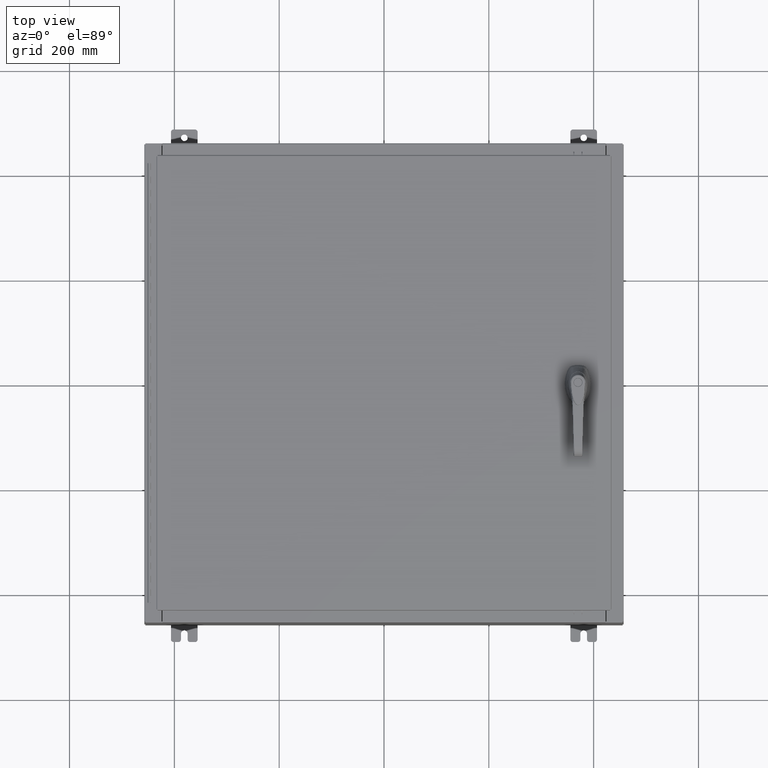
[diagram: clean part render]
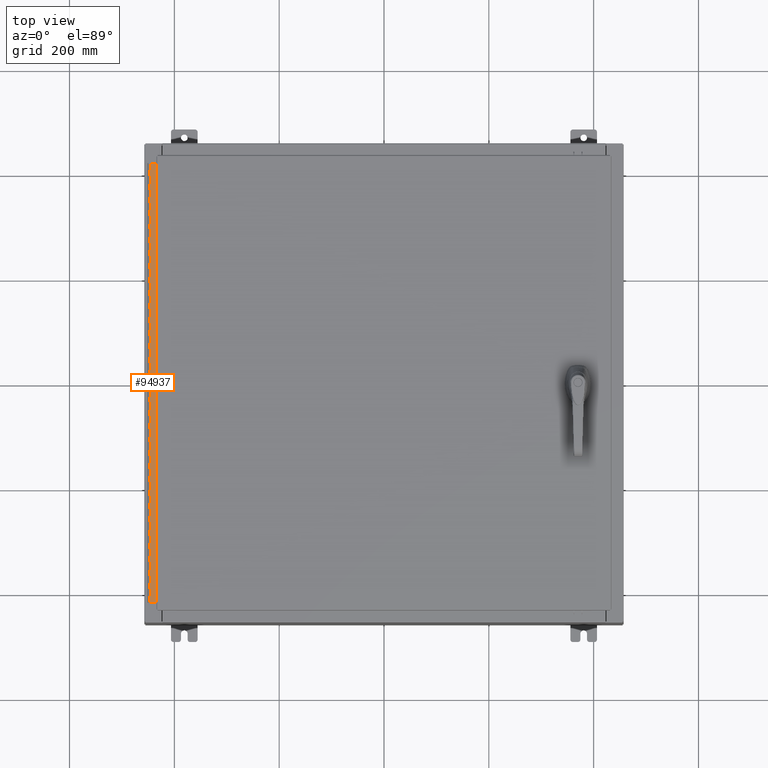
[diagram: same view with one face highlighted and labeled with its STEP entity id]
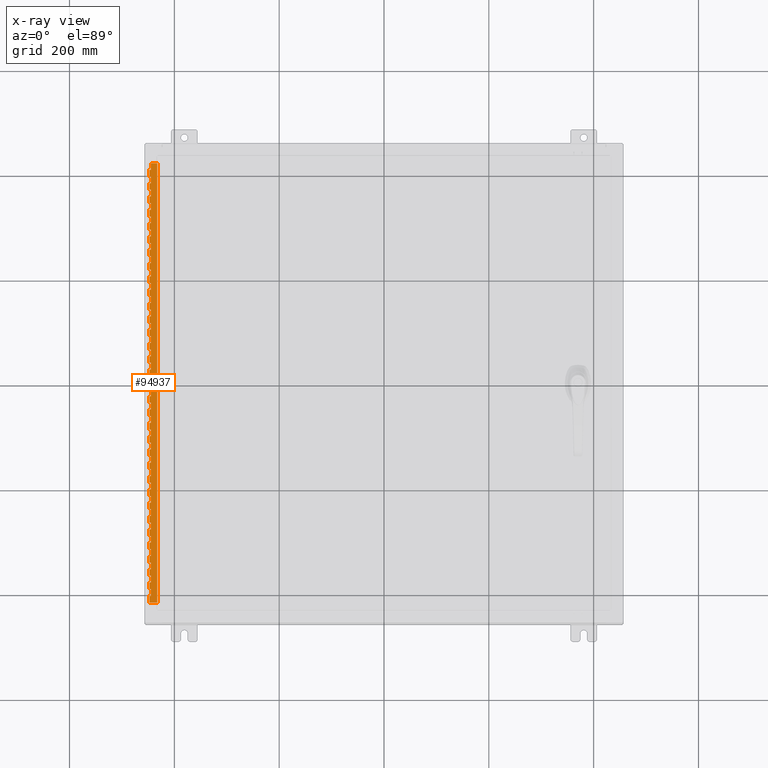
[diagram: x-ray of the same camera — body ghosted, the highlighted face saturated]
A machine part, top view. The second image highlights one B-rep face of the part: STEP entity #94937.
The next image is the same camera in x-ray: the body ghosted, the highlighted face saturated — about 0% of this face is hidden behind the body in this view.
In plain terms, the highlighted planar face has unit normal (-0, -0, 1).
Its self-contained STEP definition (entity closure, byte-faithful):
#229 = DIRECTION ( 'NONE',  ( -3.389037039080723100E-015, -1.000000000000000000, 0.0000000000000000000 ) ) ;
#231 = CARTESIAN_POINT ( 'NONE',  ( -0.6869999999999978300, 0.6754999999999996600, -33.00000000000000000 ) ) ;
#318 = DIRECTION ( 'NONE',  ( -3.389037039080723100E-015, -1.000000000000000000, 0.0000000000000000000 ) ) ;
#327 = DIRECTION ( 'NONE',  ( 0.0000000000000000000, 0.0000000000000000000, 1.000000000000000000 ) ) ;
#451 = ORIENTED_EDGE ( 'NONE', *, *, #33074, .F. ) ;
#571 = CARTESIAN_POINT ( 'NONE',  ( -0.6869999999999973900, 0.8004999999999995500, -29.99999999999999600 ) ) ;
#611 = CARTESIAN_POINT ( 'NONE',  ( -0.6869999999999973900, 0.8004999999999995500, -7.499999999999999100 ) ) ;
#660 = VERTEX_POINT ( 'NONE', #12363 ) ;
#721 = LINE ( 'NONE', #69996, #100556 ) ;
#872 = EDGE_CURVE ( 'NONE', #89973, #64168, #121676, .T. ) ;
#1007 = DIRECTION ( 'NONE',  ( 3.389037039080723100E-015, 1.000000000000000000, -0.0000000000000000000 ) ) ;
#1069 = ORIENTED_EDGE ( 'NONE', *, *, #97642, .F. ) ;
#1110 = VERTEX_POINT ( 'NONE', #14824 ) ;
#1136 = CARTESIAN_POINT ( 'NONE',  ( -0.6869999999999982800, 0.5504999999999997700, -21.50000000000000400 ) ) ;
#1152 = LINE ( 'NONE', #79375, #49525 ) ;
#1573 = ORIENTED_EDGE ( 'NONE', *, *, #85769, .F. ) ;
#1800 = CARTESIAN_POINT ( 'NONE',  ( -0.6869999999999973900, 0.8004999999999995500, -28.00000000000000000 ) ) ;
#1847 = VERTEX_POINT ( 'NONE', #65112 ) ;
#1855 = DIRECTION ( 'NONE',  ( 1.000000000000000000, -3.369016658928398200E-015, 0.0000000000000000000 ) ) ;
#1899 = EDGE_CURVE ( 'NONE', #52436, #50221, #41355, .T. ) ;
#2194 = CARTESIAN_POINT ( 'NONE',  ( -0.6869999999999982800, 0.5504999999999997700, -25.50000000000000400 ) ) ;
#2371 = DIRECTION ( 'NONE',  ( 0.0000000000000000000, 0.0000000000000000000, 1.000000000000000000 ) ) ;
#2391 = LINE ( 'NONE', #19782, #121892 ) ;
#2448 = DIRECTION ( 'NONE',  ( -3.389037039080723100E-015, -1.000000000000000000, 0.0000000000000000000 ) ) ;
#2486 = LINE ( 'NONE', #112516, #59929 ) ;
#2630 = DIRECTION ( 'NONE',  ( 0.0000000000000000000, -0.0000000000000000000, -1.000000000000000000 ) ) ;
#3236 = CARTESIAN_POINT ( 'NONE',  ( -0.6869999999999982800, 0.5504999999999997700, -24.99999999999999600 ) ) ;
#3571 = EDGE_CURVE ( 'NONE', #1847, #125045, #32065, .T. ) ;
#3693 = EDGE_CURVE ( 'NONE', #96653, #8140, #29007, .T. ) ;
#3892 = VECTOR ( 'NONE', #46872, 39.37007874015748100 ) ;
#3999 = ORIENTED_EDGE ( 'NONE', *, *, #104824, .F. ) ;
#4020 = CARTESIAN_POINT ( 'NONE',  ( -0.6869999999999982800, 0.5504999999999997700, -3.500000000000000000 ) ) ;
#4245 = ORIENTED_EDGE ( 'NONE', *, *, #33776, .T. ) ;
#4338 = CARTESIAN_POINT ( 'NONE',  ( -0.6869999999999978300, 0.6754999999999996600, -25.50000000000000400 ) ) ;
#4477 = VERTEX_POINT ( 'NONE', #4338 ) ;
#4489 = CARTESIAN_POINT ( 'NONE',  ( -0.6869999999999978300, 0.6754999999999996600, -31.50000000000000400 ) ) ;
#4723 = VERTEX_POINT ( 'NONE', #87181 ) ;
#5133 = VERTEX_POINT ( 'NONE', #52647 ) ;
#5202 = DIRECTION ( 'NONE',  ( 3.389037039080723100E-015, 1.000000000000000000, -0.0000000000000000000 ) ) ;
#5576 = EDGE_CURVE ( 'NONE', #8988, #62068, #13542, .T. ) ;
#5845 = VERTEX_POINT ( 'NONE', #47037 ) ;
#5990 = LINE ( 'NONE', #96586, #105803 ) ;
#6040 = CARTESIAN_POINT ( 'NONE',  ( -0.6869999999999978300, 0.6754999999999996600, -33.00000000000000000 ) ) ;
#6069 = CARTESIAN_POINT ( 'NONE',  ( -0.6869999999999978300, 0.6754999999999996600, -5.500000000000000000 ) ) ;
#6090 = VECTOR ( 'NONE', #51767, 39.37007874015748100 ) ;
#6250 = CARTESIAN_POINT ( 'NONE',  ( -0.6869999999999978300, 0.6754999999999996600, -33.00000000000000000 ) ) ;
#6411 = CARTESIAN_POINT ( 'NONE',  ( -0.6869999999999982800, 0.5504999999999997700, -32.50000000000000000 ) ) ;
#6416 = DIRECTION ( 'NONE',  ( 3.389037039080723100E-015, 1.000000000000000000, -0.0000000000000000000 ) ) ;
#6651 = CARTESIAN_POINT ( 'NONE',  ( -0.6869999999999978300, 0.6754999999999996600, -33.00000000000000000 ) ) ;
#6746 = ORIENTED_EDGE ( 'NONE', *, *, #30420, .T. ) ;
#6768 = ORIENTED_EDGE ( 'NONE', *, *, #114501, .F. ) ;
#6927 = EDGE_CURVE ( 'NONE', #61113, #1110, #11810, .T. ) ;
#6957 = DIRECTION ( 'NONE',  ( 0.0000000000000000000, 0.0000000000000000000, 1.000000000000000000 ) ) ;
#6961 = VERTEX_POINT ( 'NONE', #13924 ) ;
#7035 = ORIENTED_EDGE ( 'NONE', *, *, #32344, .F. ) ;
#7188 = LINE ( 'NONE', #7418, #26866 ) ;
#7196 = CARTESIAN_POINT ( 'NONE',  ( -0.6869999999999978300, 0.6754999999999996600, -22.50000000000000000 ) ) ;
#7325 = LINE ( 'NONE', #17064, #55721 ) ;
#7393 = ORIENTED_EDGE ( 'NONE', *, *, #83170, .F. ) ;
#7408 = ORIENTED_EDGE ( 'NONE', *, *, #102487, .F. ) ;
#7418 = CARTESIAN_POINT ( 'NONE',  ( -0.6869999999999973900, 0.8004999999999995500, -5.000000000000000000 ) ) ;
#7487 = CARTESIAN_POINT ( 'NONE',  ( -0.6869999999999973900, 0.8004999999999995500, -5.500000000000000000 ) ) ;
#7524 = CARTESIAN_POINT ( 'NONE',  ( -0.6869999999999978300, 0.6754999999999996600, -26.50000000000000400 ) ) ;
#7618 = VERTEX_POINT ( 'NONE', #35628 ) ;
#7647 = VECTOR ( 'NONE', #120917, 39.37007874015748100 ) ;
#7692 = LINE ( 'NONE', #571, #10748 ) ;
#7900 = DIRECTION ( 'NONE',  ( 0.0000000000000000000, -0.0000000000000000000, -1.000000000000000000 ) ) ;
#7989 = VECTOR ( 'NONE', #22906, 39.37007874015748100 ) ;
#8057 = CARTESIAN_POINT ( 'NONE',  ( -0.6869999999999973900, 0.8004999999999995500, -21.50000000000000400 ) ) ;
#8140 = VERTEX_POINT ( 'NONE', #11328 ) ;
#8148 = CARTESIAN_POINT ( 'NONE',  ( -0.6869999999999978300, 0.6754999999999996600, -33.00000000000000000 ) ) ;
#8201 = ORIENTED_EDGE ( 'NONE', *, *, #38519, .T. ) ;
#8297 = VECTOR ( 'NONE', #53578, 39.37007874015748100 ) ;
#8377 = ORIENTED_EDGE ( 'NONE', *, *, #63381, .T. ) ;
#8430 = DIRECTION ( 'NONE',  ( 3.369016658928398200E-015, 1.000000000000000000, 0.0000000000000000000 ) ) ;
#8760 = LINE ( 'NONE', #61477, #57153 ) ;
#8775 = EDGE_CURVE ( 'NONE', #23582, #81874, #96252, .T. ) ;
#8791 = VECTOR ( 'NONE', #42662, 39.37007874015748100 ) ;
#8861 = EDGE_CURVE ( 'NONE', #98784, #118731, #67520, .T. ) ;
#8988 = VERTEX_POINT ( 'NONE', #100615 ) ;
#9082 = CARTESIAN_POINT ( 'NONE',  ( -0.6869999999999982800, 0.5504999999999997700, -23.50000000000000000 ) ) ;
#9087 = LINE ( 'NONE', #60688, #54459 ) ;
#9109 = LINE ( 'NONE', #89825, #6090 ) ;
#9261 = ORIENTED_EDGE ( 'NONE', *, *, #119663, .F. ) ;
#9317 = VECTOR ( 'NONE', #92034, 39.37007874015748100 ) ;
#9347 = ORIENTED_EDGE ( 'NONE', *, *, #98762, .T. ) ;
#9675 = EDGE_CURVE ( 'NONE', #52994, #115565, #118848, .T. ) ;
#9707 = ORIENTED_EDGE ( 'NONE', *, *, #8775, .F. ) ;
#9795 = VECTOR ( 'NONE', #57329, 39.37007874015748100 ) ;
#9916 = DIRECTION ( 'NONE',  ( 0.0000000000000000000, 0.0000000000000000000, 1.000000000000000000 ) ) ;
#9919 = DIRECTION ( 'NONE',  ( 0.0000000000000000000, -0.0000000000000000000, -1.000000000000000000 ) ) ;
#10015 = CARTESIAN_POINT ( 'NONE',  ( -0.6869999999999982800, 0.5504999999999997700, -0.5000000000000000000 ) ) ;
#10050 = CARTESIAN_POINT ( 'NONE',  ( -0.6869999999999978300, 0.6754999999999996600, -2.000000000000000000 ) ) ;
#10283 = DIRECTION ( 'NONE',  ( 3.389037039080723100E-015, 1.000000000000000000, -0.0000000000000000000 ) ) ;
#10349 = CARTESIAN_POINT ( 'NONE',  ( -0.6869999999999973900, 0.8004999999999995500, -10.50000000000000000 ) ) ;
#10408 = ORIENTED_EDGE ( 'NONE', *, *, #36275, .F. ) ;
#10529 = CARTESIAN_POINT ( 'NONE',  ( -0.6869999999999982800, 0.5504999999999997700, -4.500000000000000000 ) ) ;
#10551 = EDGE_CURVE ( 'NONE', #57444, #48907, #62930, .T. ) ;
#10597 = VECTOR ( 'NONE', #41109, 39.37007874015748100 ) ;
#10617 = EDGE_CURVE ( 'NONE', #106135, #76878, #82554, .T. ) ;
#10748 = VECTOR ( 'NONE', #10283, 39.37007874015748100 ) ;
#10758 = VERTEX_POINT ( 'NONE', #65953 ) ;
#11095 = ORIENTED_EDGE ( 'NONE', *, *, #54159, .T. ) ;
#11134 = VECTOR ( 'NONE', #43611, 39.37007874015748100 ) ;
#11222 = ORIENTED_EDGE ( 'NONE', *, *, #117089, .F. ) ;
#11328 = CARTESIAN_POINT ( 'NONE',  ( -0.6869999999999978300, 0.6754999999999996600, -27.00000000000000000 ) ) ;
#11340 = LINE ( 'NONE', #43857, #8297 ) ;
#11490 = VECTOR ( 'NONE', #12849, 39.37007874015748100 ) ;
#11542 = EDGE_CURVE ( 'NONE', #106135, #90358, #64035, .T. ) ;
#11810 = LINE ( 'NONE', #90424, #8791 ) ;
#11853 = ORIENTED_EDGE ( 'NONE', *, *, #102965, .F. ) ;
#11953 = VECTOR ( 'NONE', #6416, 39.37007874015748100 ) ;
#11989 = VECTOR ( 'NONE', #111265, 39.37007874015748100 ) ;
#11994 = LINE ( 'NONE', #94513, #117916 ) ;
#12114 = VECTOR ( 'NONE', #96256, 39.37007874015748100 ) ;
#12280 = CARTESIAN_POINT ( 'NONE',  ( -0.6869999999999982800, 0.5504999999999997700, -14.00000000000000000 ) ) ;
#12363 = CARTESIAN_POINT ( 'NONE',  ( -0.6869999999999982800, 0.5504999999999997700, -16.50000000000000000 ) ) ;
#12716 = ORIENTED_EDGE ( 'NONE', *, *, #3571, .F. ) ;
#12781 = VERTEX_POINT ( 'NONE', #120696 ) ;
#12849 = DIRECTION ( 'NONE',  ( 3.389037039080723100E-015, 1.000000000000000000, -0.0000000000000000000 ) ) ;
#13130 = DIRECTION ( 'NONE',  ( 3.389037039080723100E-015, 1.000000000000000000, -0.0000000000000000000 ) ) ;
#13170 = LINE ( 'NONE', #90958, #113013 ) ;
#13314 = LINE ( 'NONE', #38573, #84339 ) ;
#13542 = LINE ( 'NONE', #99548, #113373 ) ;
#13641 = LINE ( 'NONE', #93426, #36315 ) ;
#13686 = ORIENTED_EDGE ( 'NONE', *, *, #121379, .F. ) ;
#13773 = VECTOR ( 'NONE', #20501, 39.37007874015748100 ) ;
#13924 = CARTESIAN_POINT ( 'NONE',  ( -0.6869999999999978300, 0.6754999999999996600, -19.00000000000000000 ) ) ;
#14107 = LINE ( 'NONE', #102031, #62481 ) ;
#14158 = ORIENTED_EDGE ( 'NONE', *, *, #38494, .F. ) ;
#14211 = VERTEX_POINT ( 'NONE', #26759 ) ;
#14239 = DIRECTION ( 'NONE',  ( -3.389037039080723100E-015, -1.000000000000000000, 0.0000000000000000000 ) ) ;
#14254 = CARTESIAN_POINT ( 'NONE',  ( -0.6869999999999978300, 0.6754999999999996600, -32.00000000000000000 ) ) ;
#14269 = VECTOR ( 'NONE', #86262, 39.37007874015748100 ) ;
#14372 = LINE ( 'NONE', #83565, #30988 ) ;
#14490 = CARTESIAN_POINT ( 'NONE',  ( -0.6869999999999973900, 0.8004999999999995500, -23.00000000000000000 ) ) ;
#14785 = CARTESIAN_POINT ( 'NONE',  ( -0.6869999999999982800, 0.5504999999999997700, -17.50000000000000000 ) ) ;
#14824 = CARTESIAN_POINT ( 'NONE',  ( -0.6869999999999982800, 0.5504999999999997700, -20.50000000000000400 ) ) ;
#14993 = VERTEX_POINT ( 'NONE', #56916 ) ;
#15166 = ORIENTED_EDGE ( 'NONE', *, *, #109493, .T. ) ;
#15281 = DIRECTION ( 'NONE',  ( 3.389037039080723100E-015, 1.000000000000000000, -0.0000000000000000000 ) ) ;
#15373 = CARTESIAN_POINT ( 'NONE',  ( -0.6869999999999982800, 0.5504999999999997700, -5.500000000000000000 ) ) ;
#15400 = VECTOR ( 'NONE', #318, 39.37007874015748100 ) ;
#15581 = DIRECTION ( 'NONE',  ( 0.0000000000000000000, -0.0000000000000000000, -1.000000000000000000 ) ) ;
#15615 = ORIENTED_EDGE ( 'NONE', *, *, #104253, .F. ) ;
#15623 = CARTESIAN_POINT ( 'NONE',  ( -0.6869999999999982800, 0.5504999999999997700, -31.50000000000000400 ) ) ;
#15704 = LINE ( 'NONE', #116425, #64066 ) ;
#15714 = ORIENTED_EDGE ( 'NONE', *, *, #71354, .F. ) ;
#15731 = VERTEX_POINT ( 'NONE', #99424 ) ;
#15786 = DIRECTION ( 'NONE',  ( 0.0000000000000000000, 0.0000000000000000000, 1.000000000000000000 ) ) ;
#15796 = VECTOR ( 'NONE', #24791, 39.37007874015748100 ) ;
#15879 = VERTEX_POINT ( 'NONE', #54161 ) ;
#15880 = EDGE_CURVE ( 'NONE', #78554, #18875, #37715, .T. ) ;
#15907 = LINE ( 'NONE', #66642, #38553 ) ;
#15931 = VERTEX_POINT ( 'NONE', #51603 ) ;
#16051 = CARTESIAN_POINT ( 'NONE',  ( -0.6869999999999973900, 0.8004999999999995500, -30.50000000000000400 ) ) ;
#16218 = LINE ( 'NONE', #83371, #125098 ) ;
#16307 = CARTESIAN_POINT ( 'NONE',  ( -0.6869999999999978300, 0.6754999999999996600, -12.49999999999999800 ) ) ;
#16561 = CARTESIAN_POINT ( 'NONE',  ( -0.6869999999999973900, 0.8004999999999995500, -23.50000000000000000 ) ) ;
#16660 = DIRECTION ( 'NONE',  ( -3.389037039080723100E-015, -1.000000000000000000, 0.0000000000000000000 ) ) ;
#17016 = CARTESIAN_POINT ( 'NONE',  ( -0.6869999999999982800, 0.5504999999999997700, -28.50000000000000000 ) ) ;
#17064 = CARTESIAN_POINT ( 'NONE',  ( -0.6869999999999973900, 0.8004999999999995500, -12.99999999999999800 ) ) ;
#17192 = LINE ( 'NONE', #91346, #117003 ) ;
#17285 = LINE ( 'NONE', #56690, #43000 ) ;
#17461 = VERTEX_POINT ( 'NONE', #81130 ) ;
#17641 = ORIENTED_EDGE ( 'NONE', *, *, #75058, .T. ) ;
#17758 = ORIENTED_EDGE ( 'NONE', *, *, #124004, .F. ) ;
#17765 = VERTEX_POINT ( 'NONE', #37980 ) ;
#17809 = DIRECTION ( 'NONE',  ( -3.389037039080723100E-015, -1.000000000000000000, 0.0000000000000000000 ) ) ;
#18044 = LINE ( 'NONE', #74608, #92168 ) ;
#18207 = CARTESIAN_POINT ( 'NONE',  ( -0.6869999999999978300, 0.6754999999999996600, -33.00000000000000000 ) ) ;
#18241 = ORIENTED_EDGE ( 'NONE', *, *, #120419, .F. ) ;
#18272 = VECTOR ( 'NONE', #9919, 39.37007874015748100 ) ;
#18329 = EDGE_CURVE ( 'NONE', #115707, #44400, #60437, .T. ) ;
#18501 = VECTOR ( 'NONE', #61809, 39.37007874015748100 ) ;
#18686 = EDGE_CURVE ( 'NONE', #124693, #54555, #87635, .T. ) ;
#18792 = EDGE_CURVE ( 'NONE', #15879, #15731, #104268, .T. ) ;
#18875 = VERTEX_POINT ( 'NONE', #107007 ) ;
#19132 = CARTESIAN_POINT ( 'NONE',  ( -0.6869999999999973900, 0.8004999999999995500, -24.50000000000000000 ) ) ;
#19474 = VECTOR ( 'NONE', #95101, 39.37007874015748100 ) ;
#19597 = VECTOR ( 'NONE', #117681, 39.37007874015748100 ) ;
#19731 = CARTESIAN_POINT ( 'NONE',  ( -0.6869999999999982800, 0.5504999999999997700, -30.50000000000000400 ) ) ;
#19782 = CARTESIAN_POINT ( 'NONE',  ( -0.6869999999999978300, 0.6754999999999996600, -33.00000000000000000 ) ) ;
#19851 = CARTESIAN_POINT ( 'NONE',  ( -0.6869999999999982800, 0.5504999999999997700, -2.500000000000000000 ) ) ;
#19860 = LINE ( 'NONE', #81965, #7647 ) ;
#20080 = VERTEX_POINT ( 'NONE', #28134 ) ;
#20082 = VECTOR ( 'NONE', #42427, 39.37007874015748100 ) ;
#20096 = LINE ( 'NONE', #104219, #71516 ) ;
#20222 = VERTEX_POINT ( 'NONE', #83001 ) ;
#20335 = LINE ( 'NONE', #76555, #14269 ) ;
#20359 = CARTESIAN_POINT ( 'NONE',  ( -0.6869999999999978300, 0.6754999999999996600, -14.99999999999999800 ) ) ;
#20370 = EDGE_CURVE ( 'NONE', #53907, #84093, #13314, .T. ) ;
#20482 = CARTESIAN_POINT ( 'NONE',  ( -0.6869999999999973900, 0.8004999999999995500, -20.00000000000000000 ) ) ;
#20501 = DIRECTION ( 'NONE',  ( 0.0000000000000000000, 0.0000000000000000000, 1.000000000000000000 ) ) ;
#20590 = DIRECTION ( 'NONE',  ( 0.0000000000000000000, -0.0000000000000000000, -1.000000000000000000 ) ) ;
#20621 = DIRECTION ( 'NONE',  ( 0.0000000000000000000, -0.0000000000000000000, -1.000000000000000000 ) ) ;
#21341 = ORIENTED_EDGE ( 'NONE', *, *, #92073, .F. ) ;
#21462 = CARTESIAN_POINT ( 'NONE',  ( -0.6869999999999978300, 0.6754999999999996600, -30.50000000000000400 ) ) ;
#21472 = VECTOR ( 'NONE', #64176, 39.37007874015748100 ) ;
#21562 = DIRECTION ( 'NONE',  ( 3.389037039080723100E-015, 1.000000000000000000, -0.0000000000000000000 ) ) ;
#21593 = EDGE_CURVE ( 'NONE', #660, #5133, #114490, .T. ) ;
#21708 = ORIENTED_EDGE ( 'NONE', *, *, #45461, .F. ) ;
#21840 = VECTOR ( 'NONE', #90696, 39.37007874015748100 ) ;
#21921 = VECTOR ( 'NONE', #68279, 39.37007874015748100 ) ;
#21980 = VERTEX_POINT ( 'NONE', #95538 ) ;
#21990 = CARTESIAN_POINT ( 'NONE',  ( -0.6869999999999978300, 0.6754999999999996600, -0.5000000000000000000 ) ) ;
#22315 = VECTOR ( 'NONE', #63410, 39.37007874015748100 ) ;
#22380 = ORIENTED_EDGE ( 'NONE', *, *, #124765, .F. ) ;
#22414 = CARTESIAN_POINT ( 'NONE',  ( -0.6869999999999973900, 0.8004999999999995500, -9.500000000000000000 ) ) ;
#22467 = EDGE_CURVE ( 'NONE', #123180, #24399, #56819, .T. ) ;
#22800 = EDGE_CURVE ( 'NONE', #65862, #69036, #63984, .T. ) ;
#22882 = DIRECTION ( 'NONE',  ( -3.389037039080723100E-015, -1.000000000000000000, 0.0000000000000000000 ) ) ;
#22906 = DIRECTION ( 'NONE',  ( 0.0000000000000000000, 0.0000000000000000000, 1.000000000000000000 ) ) ;
#23041 = DIRECTION ( 'NONE',  ( -3.389037039080723100E-015, -1.000000000000000000, 0.0000000000000000000 ) ) ;
#23056 = ORIENTED_EDGE ( 'NONE', *, *, #122767, .T. ) ;
#23249 = ORIENTED_EDGE ( 'NONE', *, *, #98304, .F. ) ;
#23318 = CARTESIAN_POINT ( 'NONE',  ( -0.6869999999999982800, 0.5504999999999997700, -17.99999999999999600 ) ) ;
#23499 = DIRECTION ( 'NONE',  ( 0.0000000000000000000, -0.0000000000000000000, -1.000000000000000000 ) ) ;
#23582 = VERTEX_POINT ( 'NONE', #10015 ) ;
#23643 = LINE ( 'NONE', #16051, #55357 ) ;
#23674 = VERTEX_POINT ( 'NONE', #81790 ) ;
#23681 = DIRECTION ( 'NONE',  ( 0.0000000000000000000, -0.0000000000000000000, -1.000000000000000000 ) ) ;
#23745 = LINE ( 'NONE', #101290, #123499 ) ;
#23752 = DIRECTION ( 'NONE',  ( 3.389037039080723100E-015, 1.000000000000000000, -0.0000000000000000000 ) ) ;
#23995 = CARTESIAN_POINT ( 'NONE',  ( -0.6869999999999978300, 0.6754999999999996600, -6.000000000000000900 ) ) ;
#24399 = VERTEX_POINT ( 'NONE', #15623 ) ;
#24422 = CARTESIAN_POINT ( 'NONE',  ( -0.6869999999999978300, 0.6754999999999996600, -14.00000000000000000 ) ) ;
#24446 = ORIENTED_EDGE ( 'NONE', *, *, #43597, .F. ) ;
#24678 = VERTEX_POINT ( 'NONE', #118242 ) ;
#24742 = LINE ( 'NONE', #1800, #101821 ) ;
#24751 = VERTEX_POINT ( 'NONE', #3236 ) ;
#24791 = DIRECTION ( 'NONE',  ( 3.369016658928398200E-015, 1.000000000000000000, 0.0000000000000000000 ) ) ;
#24816 = VECTOR ( 'NONE', #8430, 39.37007874015748100 ) ;
#24875 = CARTESIAN_POINT ( 'NONE',  ( -0.6869999999999973900, 0.8004999999999995500, -21.00000000000000000 ) ) ;
#24877 = CARTESIAN_POINT ( 'NONE',  ( -0.6869999999999982800, 0.5504999999999997700, -28.99999999999999600 ) ) ;
#24950 = ORIENTED_EDGE ( 'NONE', *, *, #99039, .F. ) ;
#25032 = CARTESIAN_POINT ( 'NONE',  ( -0.6869999999999978300, 0.6754999999999996600, -33.00000000000000000 ) ) ;
#25074 = VERTEX_POINT ( 'NONE', #16307 ) ;
#25440 = VERTEX_POINT ( 'NONE', #117237 ) ;
#25567 = VECTOR ( 'NONE', #87068, 39.37007874015748100 ) ;
#25583 = EDGE_CURVE ( 'NONE', #78413, #28497, #87738, .T. ) ;
#25744 = DIRECTION ( 'NONE',  ( 0.0000000000000000000, -0.0000000000000000000, -1.000000000000000000 ) ) ;
#25830 = DIRECTION ( 'NONE',  ( 0.0000000000000000000, -0.0000000000000000000, -1.000000000000000000 ) ) ;
#25981 = VERTEX_POINT ( 'NONE', #85318 ) ;
#26129 = DIRECTION ( 'NONE',  ( 0.0000000000000000000, 0.0000000000000000000, 1.000000000000000000 ) ) ;
#26705 = VERTEX_POINT ( 'NONE', #67018 ) ;
#26759 = CARTESIAN_POINT ( 'NONE',  ( -0.6869999999999982800, 0.5504999999999997700, -13.50000000000000000 ) ) ;
#26771 = CARTESIAN_POINT ( 'NONE',  ( -0.6869999999999978300, 0.6754999999999996600, -22.00000000000000000 ) ) ;
#26785 = CARTESIAN_POINT ( 'NONE',  ( -0.6869999999999982800, 0.5504999999999997700, -8.500000000000000000 ) ) ;
#26866 = VECTOR ( 'NONE', #104231, 39.37007874015748100 ) ;
#26969 = ORIENTED_EDGE ( 'NONE', *, *, #81445, .F. ) ;
#27353 = LINE ( 'NONE', #55940, #72709 ) ;
#27524 = VERTEX_POINT ( 'NONE', #97085 ) ;
#27594 = ORIENTED_EDGE ( 'NONE', *, *, #96650, .F. ) ;
#27734 = CARTESIAN_POINT ( 'NONE',  ( -0.6869999999999973900, 0.8004999999999995500, -16.00000000000000000 ) ) ;
#27782 = DIRECTION ( 'NONE',  ( 0.0000000000000000000, 0.0000000000000000000, 1.000000000000000000 ) ) ;
#28070 = VERTEX_POINT ( 'NONE', #76038 ) ;
#28104 = ORIENTED_EDGE ( 'NONE', *, *, #57651, .F. ) ;
#28134 = CARTESIAN_POINT ( 'NONE',  ( -0.6869999999999978300, 0.6754999999999996600, -21.00000000000000000 ) ) ;
#28142 = VECTOR ( 'NONE', #60056, 39.37007874015748100 ) ;
#28206 = EDGE_CURVE ( 'NONE', #81102, #66077, #1152, .T. ) ;
#28293 = DIRECTION ( 'NONE',  ( 0.0000000000000000000, 0.0000000000000000000, 1.000000000000000000 ) ) ;
#28497 = VERTEX_POINT ( 'NONE', #84382 ) ;
#28696 = EDGE_CURVE ( 'NONE', #21980, #4723, #79828, .T. ) ;
#29004 = LINE ( 'NONE', #611, #100083 ) ;
#29007 = LINE ( 'NONE', #87796, #35093 ) ;
#29079 = DIRECTION ( 'NONE',  ( 3.389037039080723100E-015, 1.000000000000000000, -0.0000000000000000000 ) ) ;
#29083 = ORIENTED_EDGE ( 'NONE', *, *, #50535, .F. ) ;
#29382 = DIRECTION ( 'NONE',  ( 0.0000000000000000000, 0.0000000000000000000, 1.000000000000000000 ) ) ;
#29801 = EDGE_CURVE ( 'NONE', #28497, #1847, #38885, .T. ) ;
#29838 = VERTEX_POINT ( 'NONE', #46894 ) ;
#29986 = DIRECTION ( 'NONE',  ( 0.0000000000000000000, 0.0000000000000000000, 1.000000000000000000 ) ) ;
#30013 = EDGE_CURVE ( 'NONE', #102809, #6961, #97839, .T. ) ;
#30271 = VERTEX_POINT ( 'NONE', #51915 ) ;
#30389 = CARTESIAN_POINT ( 'NONE',  ( -0.6869999999999982800, 0.5504999999999997700, -23.99999999999999600 ) ) ;
#30420 = EDGE_CURVE ( 'NONE', #43003, #57800, #53942, .T. ) ;
#30424 = CARTESIAN_POINT ( 'NONE',  ( -0.6869999999999978300, 0.6754999999999996600, -26.00000000000000000 ) ) ;
#30614 = CARTESIAN_POINT ( 'NONE',  ( -0.6870000000000022800, -0.6245000000000003900, -33.00000000000000000 ) ) ;
#30986 = EDGE_CURVE ( 'NONE', #115774, #100275, #122150, .T. ) ;
#30988 = VECTOR ( 'NONE', #25744, 39.37007874015748100 ) ;
#31149 = EDGE_CURVE ( 'NONE', #102809, #37666, #41954, .T. ) ;
#31178 = VECTOR ( 'NONE', #82737, 39.37007874015748100 ) ;
#31401 = DIRECTION ( 'NONE',  ( 3.389037039080723100E-015, 1.000000000000000000, -0.0000000000000000000 ) ) ;
#31517 = EDGE_CURVE ( 'NONE', #108435, #96865, #88744, .T. ) ;
#31630 = DIRECTION ( 'NONE',  ( 0.0000000000000000000, -0.0000000000000000000, -1.000000000000000000 ) ) ;
#31754 = DIRECTION ( 'NONE',  ( 3.389037039080723100E-015, 1.000000000000000000, -0.0000000000000000000 ) ) ;
#31867 = ORIENTED_EDGE ( 'NONE', *, *, #74426, .T. ) ;
#31911 = CARTESIAN_POINT ( 'NONE',  ( -0.6869999999999973900, 0.8004999999999995500, -6.499999999999999100 ) ) ;
#31968 = ORIENTED_EDGE ( 'NONE', *, *, #21593, .F. ) ;
#32065 = LINE ( 'NONE', #27734, #109173 ) ;
#32262 = ORIENTED_EDGE ( 'NONE', *, *, #76974, .T. ) ;
#32277 = VERTEX_POINT ( 'NONE', #79590 ) ;
#32344 = EDGE_CURVE ( 'NONE', #101141, #64168, #62936, .T. ) ;
#32343 = DIRECTION ( 'NONE',  ( 0.0000000000000000000, 0.0000000000000000000, 1.000000000000000000 ) ) ;
#32521 = EDGE_CURVE ( 'NONE', #93828, #119640, #108307, .T. ) ;
#32639 = CARTESIAN_POINT ( 'NONE',  ( -0.6869999999999978300, 0.6754999999999996600, -23.00000000000000000 ) ) ;
#32694 = CARTESIAN_POINT ( 'NONE',  ( -0.6869999999999978300, 0.6754999999999996600, -11.99999999999999800 ) ) ;
#32761 = VERTEX_POINT ( 'NONE', #73989 ) ;
#32895 = VECTOR ( 'NONE', #47605, 39.37007874015748100 ) ;
#32927 = EDGE_CURVE ( 'NONE', #24751, #115757, #103701, .T. ) ;
#33074 = EDGE_CURVE ( 'NONE', #12781, #7618, #120350, .T. ) ;
#33231 = VECTOR ( 'NONE', #17809, 39.37007874015748100 ) ;
#33244 = ORIENTED_EDGE ( 'NONE', *, *, #122235, .F. ) ;
#33346 = CARTESIAN_POINT ( 'NONE',  ( -0.6869999999999978300, 0.6754999999999996600, -5.000000000000000000 ) ) ;
#33539 = EDGE_CURVE ( 'NONE', #60401, #102752, #15907, .T. ) ;
#33565 = EDGE_CURVE ( 'NONE', #73903, #17765, #112695, .T. ) ;
#33692 = DIRECTION ( 'NONE',  ( -3.389037039080723100E-015, -1.000000000000000000, 0.0000000000000000000 ) ) ;
#33776 = EDGE_CURVE ( 'NONE', #114285, #69039, #721, .T. ) ;
#34055 = ORIENTED_EDGE ( 'NONE', *, *, #18686, .F. ) ;
#34129 = CARTESIAN_POINT ( 'NONE',  ( -0.6869999999999982800, 0.5504999999999997700, -7.499999999999999100 ) ) ;
#34199 = CARTESIAN_POINT ( 'NONE',  ( -0.6869999999999973900, 0.8004999999999995500, -31.50000000000000400 ) ) ;
#34485 = ORIENTED_EDGE ( 'NONE', *, *, #117405, .F. ) ;
#34533 = ORIENTED_EDGE ( 'NONE', *, *, #98700, .T. ) ;
#34812 = ORIENTED_EDGE ( 'NONE', *, *, #93598, .F. ) ;
#34814 = VECTOR ( 'NONE', #32343, 39.37007874015748100 ) ;
#34904 = EDGE_CURVE ( 'NONE', #41524, #108435, #39879, .T. ) ;
#35034 = LINE ( 'NONE', #6040, #63725 ) ;
#35052 = EDGE_CURVE ( 'NONE', #73014, #106778, #101899, .T. ) ;
#35093 = VECTOR ( 'NONE', #29079, 39.37007874015748100 ) ;
#35258 = LINE ( 'NONE', #40883, #57866 ) ;
#35358 = CARTESIAN_POINT ( 'NONE',  ( -0.6869999999999982800, 0.5504999999999997700, -22.00000000000000000 ) ) ;
#35628 = CARTESIAN_POINT ( 'NONE',  ( -0.6869999999999982800, 0.5504999999999997700, -2.999999999999999600 ) ) ;
#35841 = CARTESIAN_POINT ( 'NONE',  ( -0.6869999999999978300, 0.6754999999999996600, -33.00000000000000000 ) ) ;
#36161 = VECTOR ( 'NONE', #66483, 39.37007874015748100 ) ;
#36275 = EDGE_CURVE ( 'NONE', #49150, #12781, #74461, .T. ) ;
#36308 = DIRECTION ( 'NONE',  ( -3.389037039080723100E-015, -1.000000000000000000, 0.0000000000000000000 ) ) ;
#36315 = VECTOR ( 'NONE', #102731, 39.37007874015748100 ) ;
#36412 = VECTOR ( 'NONE', #61371, 39.37007874015748100 ) ;
#36425 = CARTESIAN_POINT ( 'NONE',  ( -0.6869999999999978300, 0.6754999999999996600, -4.000000000000000000 ) ) ;
#36615 = DIRECTION ( 'NONE',  ( 3.389037039080723100E-015, 1.000000000000000000, -0.0000000000000000000 ) ) ;
#36771 = LINE ( 'NONE', #93154, #7989 ) ;
#36885 = EDGE_CURVE ( 'NONE', #51045, #23674, #89522, .T. ) ;
#37106 = ORIENTED_EDGE ( 'NONE', *, *, #32927, .F. ) ;
#37116 = EDGE_CURVE ( 'NONE', #65573, #51045, #29004, .T. ) ;
#37207 = CARTESIAN_POINT ( 'NONE',  ( -0.6869999999999982800, 0.5504999999999997700, -6.499999999999999100 ) ) ;
#37215 = ORIENTED_EDGE ( 'NONE', *, *, #22800, .T. ) ;
#37345 = DIRECTION ( 'NONE',  ( -3.389037039080723100E-015, -1.000000000000000000, 0.0000000000000000000 ) ) ;
#37415 = VECTOR ( 'NONE', #56332, 39.37007874015748100 ) ;
#37486 = DIRECTION ( 'NONE',  ( 0.0000000000000000000, -0.0000000000000000000, -1.000000000000000000 ) ) ;
#37666 = VERTEX_POINT ( 'NONE', #38919 ) ;
#37715 = LINE ( 'NONE', #101532, #11989 ) ;
#37797 = VECTOR ( 'NONE', #120771, 39.37007874015748100 ) ;
#37891 = CARTESIAN_POINT ( 'NONE',  ( -0.6869999999999973900, 0.8004999999999995500, -18.50000000000000000 ) ) ;
#37980 = CARTESIAN_POINT ( 'NONE',  ( -0.6869999999999982800, 0.5504999999999997700, -14.99999999999999800 ) ) ;
#37983 = LINE ( 'NONE', #100863, #112122 ) ;
#38253 = CARTESIAN_POINT ( 'NONE',  ( -0.6869999999999973900, 0.8004999999999995500, -9.000000000000000000 ) ) ;
#38403 = ORIENTED_EDGE ( 'NONE', *, *, #96062, .F. ) ;
#38494 = EDGE_CURVE ( 'NONE', #73014, #25440, #63555, .T. ) ;
#38519 = EDGE_CURVE ( 'NONE', #17461, #48907, #9087, .T. ) ;
#38553 = VECTOR ( 'NONE', #37486, 39.37007874015748100 ) ;
#38573 = CARTESIAN_POINT ( 'NONE',  ( -0.6869999999999973900, 0.8004999999999995500, -11.99999999999999800 ) ) ;
#38645 = CARTESIAN_POINT ( 'NONE',  ( -0.6869999999999982800, 0.5504999999999997700, -27.50000000000000000 ) ) ;
#38885 = LINE ( 'NONE', #46481, #113031 ) ;
#38919 = CARTESIAN_POINT ( 'NONE',  ( -0.6869999999999982800, 0.5504999999999997700, -19.50000000000000000 ) ) ;
#39226 = EDGE_CURVE ( 'NONE', #119640, #69036, #11994, .T. ) ;
#39274 = CARTESIAN_POINT ( 'NONE',  ( -0.6869999999999978300, 0.6754999999999996600, -33.00000000000000000 ) ) ;
#39426 = LINE ( 'NONE', #70715, #36412 ) ;
#39477 = LINE ( 'NONE', #24875, #113618 ) ;
#39489 = CARTESIAN_POINT ( 'NONE',  ( -0.6869999999999978300, 0.6754999999999996600, -33.00000000000000000 ) ) ;
#39506 = ORIENTED_EDGE ( 'NONE', *, *, #68790, .F. ) ;
#39879 = LINE ( 'NONE', #120982, #11134 ) ;
#39953 = EDGE_CURVE ( 'NONE', #75070, #26705, #120862, .T. ) ;
#40075 = EDGE_CURVE ( 'NONE', #82984, #45458, #110025, .T. ) ;
#40129 = ORIENTED_EDGE ( 'NONE', *, *, #9675, .F. ) ;
#40194 = LINE ( 'NONE', #40331, #114346 ) ;
#40228 = VECTOR ( 'NONE', #112115, 39.37007874015748100 ) ;
#40331 = CARTESIAN_POINT ( 'NONE',  ( -0.6869999999999982800, 0.5504999999999997700, -19.50000000000000000 ) ) ;
#40357 = VECTOR ( 'NONE', #96148, 39.37007874015748100 ) ;
#40530 = VERTEX_POINT ( 'NONE', #33346 ) ;
#40854 = VECTOR ( 'NONE', #70033, 39.37007874015748100 ) ;
#40883 = CARTESIAN_POINT ( 'NONE',  ( -0.6869999999999973900, 0.8004999999999995500, -25.50000000000000400 ) ) ;
#40896 = LINE ( 'NONE', #107529, #92397 ) ;
#41109 = DIRECTION ( 'NONE',  ( -3.389037039080723100E-015, -1.000000000000000000, 0.0000000000000000000 ) ) ;
#41222 = ORIENTED_EDGE ( 'NONE', *, *, #36885, .F. ) ;
#41247 = EDGE_CURVE ( 'NONE', #118730, #98784, #94717, .T. ) ;
#41266 = DIRECTION ( 'NONE',  ( 3.389037039080723100E-015, 1.000000000000000000, -0.0000000000000000000 ) ) ;
#41355 = LINE ( 'NONE', #7487, #64042 ) ;
#41370 = ORIENTED_EDGE ( 'NONE', *, *, #18329, .T. ) ;
#41433 = CARTESIAN_POINT ( 'NONE',  ( -0.6869999999999973900, 0.8004999999999995500, -4.000000000000000000 ) ) ;
#41524 = VERTEX_POINT ( 'NONE', #26785 ) ;
#41783 = VECTOR ( 'NONE', #66706, 39.37007874015748100 ) ;
#41954 = LINE ( 'NONE', #115705, #32895 ) ;
#41995 = EDGE_CURVE ( 'NONE', #96938, #104370, #94598, .T. ) ;
#42021 = DIRECTION ( 'NONE',  ( -3.389037039080723100E-015, -1.000000000000000000, 0.0000000000000000000 ) ) ;
#42024 = CARTESIAN_POINT ( 'NONE',  ( -0.6869999999999982800, 0.5504999999999997700, -29.50000000000000000 ) ) ;
#42094 = DIRECTION ( 'NONE',  ( 3.389037039080723100E-015, 1.000000000000000000, -0.0000000000000000000 ) ) ;
#42315 = CARTESIAN_POINT ( 'NONE',  ( -0.6869999999999978300, 0.6754999999999996600, -13.50000000000000000 ) ) ;
#42325 = VERTEX_POINT ( 'NONE', #21990 ) ;
#42337 = DIRECTION ( 'NONE',  ( 3.389037039080723100E-015, 1.000000000000000000, -0.0000000000000000000 ) ) ;
#42386 = EDGE_CURVE ( 'NONE', #5845, #27524, #118764, .T. ) ;
#42427 = DIRECTION ( 'NONE',  ( 0.0000000000000000000, 0.0000000000000000000, 1.000000000000000000 ) ) ;
#42662 = DIRECTION ( 'NONE',  ( -3.389037039080723100E-015, -1.000000000000000000, 0.0000000000000000000 ) ) ;
#42709 = VECTOR ( 'NONE', #23041, 39.37007874015748100 ) ;
#42773 = VERTEX_POINT ( 'NONE', #56491 ) ;
#42957 = DIRECTION ( 'NONE',  ( 0.0000000000000000000, 0.0000000000000000000, 1.000000000000000000 ) ) ;
#43000 = VECTOR ( 'NONE', #76146, 39.37007874015748100 ) ;
#43003 = VERTEX_POINT ( 'NONE', #68755 ) ;
#43233 = EDGE_CURVE ( 'NONE', #25440, #15931, #112592, .T. ) ;
#43314 = ORIENTED_EDGE ( 'NONE', *, *, #41247, .F. ) ;
#43360 = VERTEX_POINT ( 'NONE', #106134 ) ;
#43423 = ORIENTED_EDGE ( 'NONE', *, *, #10551, .F. ) ;
#43505 = LINE ( 'NONE', #37891, #66155 ) ;
#43597 = EDGE_CURVE ( 'NONE', #65862, #72815, #91360, .T. ) ;
#43611 = DIRECTION ( 'NONE',  ( 0.0000000000000000000, -0.0000000000000000000, -1.000000000000000000 ) ) ;
#43857 = CARTESIAN_POINT ( 'NONE',  ( -0.6869999999999978300, 0.6754999999999996600, -33.00000000000000000 ) ) ;
#44017 = CARTESIAN_POINT ( 'NONE',  ( -0.6869999999999982800, 0.5504999999999997700, -6.499999999999999100 ) ) ;
#44032 = ORIENTED_EDGE ( 'NONE', *, *, #62964, .F. ) ;
#44104 = ORIENTED_EDGE ( 'NONE', *, *, #22467, .F. ) ;
#44218 = LINE ( 'NONE', #90573, #18501 ) ;
#44400 = VERTEX_POINT ( 'NONE', #111345 ) ;
#44409 = VECTOR ( 'NONE', #27782, 39.37007874015748100 ) ;
#44451 = EDGE_CURVE ( 'NONE', #14211, #57444, #14107, .T. ) ;
#44477 = CARTESIAN_POINT ( 'NONE',  ( -0.6869999999999973900, 0.8004999999999995500, -14.00000000000000000 ) ) ;
#44485 = LINE ( 'NONE', #89511, #73217 ) ;
#44520 = EDGE_CURVE ( 'NONE', #68686, #70336, #36771, .T. ) ;
#44875 = DIRECTION ( 'NONE',  ( 0.0000000000000000000, 0.0000000000000000000, 1.000000000000000000 ) ) ;
#45002 = VECTOR ( 'NONE', #7900, 39.37007874015748100 ) ;
#45107 = ORIENTED_EDGE ( 'NONE', *, *, #872, .T. ) ;
#45176 = LINE ( 'NONE', #37207, #19474 ) ;
#45458 = VERTEX_POINT ( 'NONE', #106231 ) ;
#45461 = EDGE_CURVE ( 'NONE', #72454, #101141, #101679, .T. ) ;
#45658 = CARTESIAN_POINT ( 'NONE',  ( -0.6869999999999978300, 0.6754999999999996600, -29.50000000000000000 ) ) ;
#46365 = CARTESIAN_POINT ( 'NONE',  ( -0.6869999999999982800, 0.5504999999999997700, -27.50000000000000000 ) ) ;
#46481 = CARTESIAN_POINT ( 'NONE',  ( -0.6869999999999982800, 0.5504999999999997700, -15.50000000000000000 ) ) ;
#46580 = VECTOR ( 'NONE', #64576, 39.37007874015748100 ) ;
#46676 = VECTOR ( 'NONE', #2630, 39.37007874015748100 ) ;
#46872 = DIRECTION ( 'NONE',  ( 3.389037039080723100E-015, 1.000000000000000000, -0.0000000000000000000 ) ) ;
#46894 = CARTESIAN_POINT ( 'NONE',  ( -0.6869999999999978300, 0.6754999999999996600, -16.50000000000000000 ) ) ;
#47010 = EDGE_CURVE ( 'NONE', #76878, #90915, #39426, .T. ) ;
#47037 = CARTESIAN_POINT ( 'NONE',  ( -0.6869999999999978300, 0.6754999999999996600, -9.500000000000000000 ) ) ;
#47213 = LINE ( 'NONE', #15373, #72961 ) ;
#47600 = ORIENTED_EDGE ( 'NONE', *, *, #95982, .F. ) ;
#47605 = DIRECTION ( 'NONE',  ( -3.389037039080723100E-015, -1.000000000000000000, 0.0000000000000000000 ) ) ;
#47657 = ORIENTED_EDGE ( 'NONE', *, *, #8861, .F. ) ;
#47898 = ORIENTED_EDGE ( 'NONE', *, *, #5576, .F. ) ;
#48012 = LINE ( 'NONE', #231, #96414 ) ;
#48907 = VERTEX_POINT ( 'NONE', #24422 ) ;
#49150 = VERTEX_POINT ( 'NONE', #85121 ) ;
#49525 = VECTOR ( 'NONE', #21562, 39.37007874015748100 ) ;
#49561 = DIRECTION ( 'NONE',  ( 3.389037039080723100E-015, 1.000000000000000000, -0.0000000000000000000 ) ) ;
#49604 = LINE ( 'NONE', #39489, #101104 ) ;
#49850 = EDGE_CURVE ( 'NONE', #4723, #88787, #70997, .T. ) ;
#50160 = LINE ( 'NONE', #77197, #15400 ) ;
#50221 = VERTEX_POINT ( 'NONE', #82914 ) ;
#50421 = CARTESIAN_POINT ( 'NONE',  ( -0.6869999999999973900, 0.8004999999999995500, -15.50000000000000000 ) ) ;
#50535 = EDGE_CURVE ( 'NONE', #116676, #18875, #51219, .T. ) ;
#50764 = CARTESIAN_POINT ( 'NONE',  ( -0.6869999999999982800, 0.5504999999999997700, -21.00000000000000000 ) ) ;
#50815 = VERTEX_POINT ( 'NONE', #51971 ) ;
#50828 = ORIENTED_EDGE ( 'NONE', *, *, #31149, .F. ) ;
#51045 = VERTEX_POINT ( 'NONE', #104741 ) ;
#51089 = LINE ( 'NONE', #72832, #54139 ) ;
#51189 = VERTEX_POINT ( 'NONE', #67943 ) ;
#51219 = LINE ( 'NONE', #115869, #25567 ) ;
#51412 = CARTESIAN_POINT ( 'NONE',  ( -0.6869999999999982800, 0.5504999999999997700, -28.00000000000000000 ) ) ;
#51603 = CARTESIAN_POINT ( 'NONE',  ( -0.6869999999999978300, 0.6754999999999996600, 0.0000000000000000000 ) ) ;
#51613 = CARTESIAN_POINT ( 'NONE',  ( -0.6869999999999982800, 0.5504999999999997700, -21.50000000000000400 ) ) ;
#51767 = DIRECTION ( 'NONE',  ( 0.0000000000000000000, -0.0000000000000000000, -1.000000000000000000 ) ) ;
#51915 = CARTESIAN_POINT ( 'NONE',  ( -0.6869999999999982800, 0.5504999999999997700, -2.000000000000000000 ) ) ;
#51971 = CARTESIAN_POINT ( 'NONE',  ( -0.6869999999999978300, 0.6754999999999996600, -11.50000000000000000 ) ) ;
#52013 = ORIENTED_EDGE ( 'NONE', *, *, #88383, .F. ) ;
#52098 = ORIENTED_EDGE ( 'NONE', *, *, #87948, .T. ) ;
#52436 = VERTEX_POINT ( 'NONE', #6069 ) ;
#52647 = CARTESIAN_POINT ( 'NONE',  ( -0.6869999999999982800, 0.5504999999999997700, -17.00000000000000000 ) ) ;
#52769 = ORIENTED_EDGE ( 'NONE', *, *, #104472, .F. ) ;
#52858 = VECTOR ( 'NONE', #115018, 39.37007874015748100 ) ;
#52986 = CARTESIAN_POINT ( 'NONE',  ( -0.6869999999999982800, 0.5504999999999997700, -29.99999999999999600 ) ) ;
#52994 = VERTEX_POINT ( 'NONE', #51613 ) ;
#53578 = DIRECTION ( 'NONE',  ( 0.0000000000000000000, 0.0000000000000000000, 1.000000000000000000 ) ) ;
#53907 = VERTEX_POINT ( 'NONE', #82262 ) ;
#53942 = LINE ( 'NONE', #63285, #69111 ) ;
#54070 = ORIENTED_EDGE ( 'NONE', *, *, #42386, .F. ) ;
#54139 = VECTOR ( 'NONE', #5202, 39.37007874015748100 ) ;
#54159 = EDGE_CURVE ( 'NONE', #5845, #96865, #5990, .T. ) ;
#54161 = CARTESIAN_POINT ( 'NONE',  ( -0.6869999999999978300, 0.6754999999999996600, -24.50000000000000000 ) ) ;
#54179 = VECTOR ( 'NONE', #20590, 39.37007874015748100 ) ;
#54459 = VECTOR ( 'NONE', #89887, 39.37007874015748100 ) ;
#54555 = VERTEX_POINT ( 'NONE', #84173 ) ;
#55077 = ORIENTED_EDGE ( 'NONE', *, *, #98504, .F. ) ;
#55201 = ORIENTED_EDGE ( 'NONE', *, *, #66355, .T. ) ;
#55351 = CARTESIAN_POINT ( 'NONE',  ( -0.6869999999999978300, 0.6754999999999996600, -28.99999999999999600 ) ) ;
#55357 = VECTOR ( 'NONE', #36308, 39.37007874015748100 ) ;
#55721 = VECTOR ( 'NONE', #104097, 39.37007874015748100 ) ;
#55863 = LINE ( 'NONE', #57064, #52858 ) ;
#55940 = CARTESIAN_POINT ( 'NONE',  ( -0.6869999999999973900, 0.8004999999999995500, -27.50000000000000000 ) ) ;
#56207 = DIRECTION ( 'NONE',  ( 0.0000000000000000000, -0.0000000000000000000, -1.000000000000000000 ) ) ;
#56332 = DIRECTION ( 'NONE',  ( 0.0000000000000000000, 0.0000000000000000000, 1.000000000000000000 ) ) ;
#56491 = CARTESIAN_POINT ( 'NONE',  ( -0.6869999999999978300, 0.6754999999999996600, -1.000000000000000000 ) ) ;
#56612 = CARTESIAN_POINT ( 'NONE',  ( -0.6870000000000022800, -0.6245000000000003900, -33.00000000000000000 ) ) ;
#56690 = CARTESIAN_POINT ( 'NONE',  ( -0.6869999999999973900, 0.8004999999999995500, -12.49999999999999800 ) ) ;
#56819 = LINE ( 'NONE', #34199, #31178 ) ;
#56833 = VECTOR ( 'NONE', #74448, 39.37007874015748100 ) ;
#56907 = EDGE_CURVE ( 'NONE', #67065, #14211, #16218, .T. ) ;
#56910 = LINE ( 'NONE', #14490, #82619 ) ;
#56916 = CARTESIAN_POINT ( 'NONE',  ( -0.6869999999999982800, 0.5504999999999997700, -11.50000000000000000 ) ) ;
#57064 = CARTESIAN_POINT ( 'NONE',  ( -0.6869999999999973900, 0.8004999999999995500, -28.50000000000000000 ) ) ;
#57153 = VECTOR ( 'NONE', #90682, 39.37007874015748100 ) ;
#57329 = DIRECTION ( 'NONE',  ( 0.0000000000000000000, -0.0000000000000000000, -1.000000000000000000 ) ) ;
#57444 = VERTEX_POINT ( 'NONE', #12280 ) ;
#57651 = EDGE_CURVE ( 'NONE', #90915, #118495, #115909, .T. ) ;
#57778 = VERTEX_POINT ( 'NONE', #10050 ) ;
#57800 = VERTEX_POINT ( 'NONE', #67986 ) ;
#57866 = VECTOR ( 'NONE', #2448, 39.37007874015748100 ) ;
#57875 = VECTOR ( 'NONE', #77587, 39.37007874015748100 ) ;
#58224 = LINE ( 'NONE', #19731, #86961 ) ;
#58556 = VECTOR ( 'NONE', #15281, 39.37007874015748100 ) ;
#58732 = LINE ( 'NONE', #62006, #107187 ) ;
#59060 = LINE ( 'NONE', #64127, #107495 ) ;
#59068 = DIRECTION ( 'NONE',  ( 0.0000000000000000000, -0.0000000000000000000, -1.000000000000000000 ) ) ;
#59671 = EDGE_CURVE ( 'NONE', #25981, #20080, #2391, .T. ) ;
#59751 = VERTEX_POINT ( 'NONE', #21462 ) ;
#59776 = ORIENTED_EDGE ( 'NONE', *, *, #90458, .T. ) ;
#59780 = CARTESIAN_POINT ( 'NONE',  ( -0.6869999999999982800, 0.5504999999999997700, -20.00000000000000000 ) ) ;
#59929 = VECTOR ( 'NONE', #44875, 39.37007874015748100 ) ;
#60056 = DIRECTION ( 'NONE',  ( 0.0000000000000000000, -0.0000000000000000000, -1.000000000000000000 ) ) ;
#60074 = VECTOR ( 'NONE', #16660, 39.37007874015748100 ) ;
#60241 = ORIENTED_EDGE ( 'NONE', *, *, #75394, .F. ) ;
#60377 = VECTOR ( 'NONE', #93557, 39.37007874015748100 ) ;
#60401 = VERTEX_POINT ( 'NONE', #42024 ) ;
#60437 = LINE ( 'NONE', #60602, #34814 ) ;
#60602 = CARTESIAN_POINT ( 'NONE',  ( -0.6869999999999978300, 0.6754999999999996600, -33.00000000000000000 ) ) ;
#60688 = CARTESIAN_POINT ( 'NONE',  ( -0.6869999999999978300, 0.6754999999999996600, -33.00000000000000000 ) ) ;
#60803 = ORIENTED_EDGE ( 'NONE', *, *, #125268, .F. ) ;
#60904 = LINE ( 'NONE', #107709, #86605 ) ;
#61007 = VECTOR ( 'NONE', #49561, 39.37007874015748100 ) ;
#61013 = CARTESIAN_POINT ( 'NONE',  ( -0.6869999999999973900, 0.8004999999999995500, -17.99999999999999600 ) ) ;
#61113 = VERTEX_POINT ( 'NONE', #115718 ) ;
#61293 = VECTOR ( 'NONE', #42337, 39.37007874015748100 ) ;
#61371 = DIRECTION ( 'NONE',  ( 0.0000000000000000000, -0.0000000000000000000, -1.000000000000000000 ) ) ;
#61415 = CARTESIAN_POINT ( 'NONE',  ( -0.6869999999999973900, 0.8004999999999995500, -2.500000000000000000 ) ) ;
#61477 = CARTESIAN_POINT ( 'NONE',  ( -0.6869999999999973900, 0.8004999999999995500, -17.50000000000000000 ) ) ;
#61809 = DIRECTION ( 'NONE',  ( -3.389037039080723100E-015, -1.000000000000000000, 0.0000000000000000000 ) ) ;
#61946 = VECTOR ( 'NONE', #66445, 39.37007874015748100 ) ;
#62006 = CARTESIAN_POINT ( 'NONE',  ( -0.6869999999999982800, 0.5504999999999997700, -26.50000000000000400 ) ) ;
#62068 = VERTEX_POINT ( 'NONE', #6411 ) ;
#62481 = VECTOR ( 'NONE', #121494, 39.37007874015748100 ) ;
#62884 = DIRECTION ( 'NONE',  ( 0.0000000000000000000, 0.0000000000000000000, 1.000000000000000000 ) ) ;
#62930 = LINE ( 'NONE', #44477, #40228 ) ;
#62936 = LINE ( 'NONE', #61013, #11490 ) ;
#62964 = EDGE_CURVE ( 'NONE', #110186, #51189, #66919, .T. ) ;
#63043 = VECTOR ( 'NONE', #111506, 39.37007874015748100 ) ;
#63285 = CARTESIAN_POINT ( 'NONE',  ( -0.6869999999999978300, 0.6754999999999996600, -33.00000000000000000 ) ) ;
#63381 = EDGE_CURVE ( 'NONE', #78413, #72280, #15704, .T. ) ;
#63389 = VECTOR ( 'NONE', #23681, 39.37007874015748100 ) ;
#63410 = DIRECTION ( 'NONE',  ( 0.0000000000000000000, 0.0000000000000000000, 1.000000000000000000 ) ) ;
#63470 = EDGE_CURVE ( 'NONE', #93208, #69468, #89796, .T. ) ;
#63515 = VECTOR ( 'NONE', #14239, 39.37007874015748100 ) ;
#63555 = LINE ( 'NONE', #108493, #40854 ) ;
#63662 = ORIENTED_EDGE ( 'NONE', *, *, #32521, .F. ) ;
#63725 = VECTOR ( 'NONE', #15786, 39.37007874015748100 ) ;
#63984 = LINE ( 'NONE', #67914, #57875 ) ;
#64035 = LINE ( 'NONE', #85635, #44409 ) ;
#64042 = VECTOR ( 'NONE', #81933, 39.37007874015748100 ) ;
#64066 = VECTOR ( 'NONE', #68232, 39.37007874015748100 ) ;
#64127 = CARTESIAN_POINT ( 'NONE',  ( -0.6869999999999973900, 0.8004999999999995500, -17.00000000000000000 ) ) ;
#64168 = VERTEX_POINT ( 'NONE', #88239 ) ;
#64176 = DIRECTION ( 'NONE',  ( 0.0000000000000000000, -0.0000000000000000000, -1.000000000000000000 ) ) ;
#64283 = ORIENTED_EDGE ( 'NONE', *, *, #35052, .T. ) ;
#64575 = EDGE_CURVE ( 'NONE', #4477, #115757, #71494, .T. ) ;
#64576 = DIRECTION ( 'NONE',  ( 0.0000000000000000000, 0.0000000000000000000, 1.000000000000000000 ) ) ;
#65112 = CARTESIAN_POINT ( 'NONE',  ( -0.6869999999999982800, 0.5504999999999997700, -16.00000000000000000 ) ) ;
#65144 = ORIENTED_EDGE ( 'NONE', *, *, #39226, .F. ) ;
#65163 = LINE ( 'NONE', #78308, #13773 ) ;
#65573 = VERTEX_POINT ( 'NONE', #80688 ) ;
#65729 = CARTESIAN_POINT ( 'NONE',  ( -0.6869999999999978300, 0.6754999999999996600, -16.00000000000000000 ) ) ;
#65862 = VERTEX_POINT ( 'NONE', #7524 ) ;
#65953 = CARTESIAN_POINT ( 'NONE',  ( -0.6869999999999982800, 0.5504999999999997700, -6.000000000000000900 ) ) ;
#65962 = ORIENTED_EDGE ( 'NONE', *, *, #70337, .F. ) ;
#66077 = VERTEX_POINT ( 'NONE', #14254 ) ;
#66155 = VECTOR ( 'NONE', #124964, 39.37007874015748100 ) ;
#66355 = EDGE_CURVE ( 'NONE', #59751, #32761, #65163, .T. ) ;
#66422 = LINE ( 'NONE', #74079, #11953 ) ;
#66445 = DIRECTION ( 'NONE',  ( -3.389037039080723100E-015, -1.000000000000000000, 0.0000000000000000000 ) ) ;
#66482 = CARTESIAN_POINT ( 'NONE',  ( -0.6869999999999982800, 0.5504999999999997700, -31.00000000000000000 ) ) ;
#66483 = DIRECTION ( 'NONE',  ( 3.389037039080723100E-015, 1.000000000000000000, -0.0000000000000000000 ) ) ;
#66642 = CARTESIAN_POINT ( 'NONE',  ( -0.6869999999999982800, 0.5504999999999997700, -29.50000000000000000 ) ) ;
#66644 = LINE ( 'NONE', #67852, #18272 ) ;
#66706 = DIRECTION ( 'NONE',  ( 3.389037039080723100E-015, 1.000000000000000000, -0.0000000000000000000 ) ) ;
#66919 = LINE ( 'NONE', #89473, #115335 ) ;
#67018 = CARTESIAN_POINT ( 'NONE',  ( -0.6869999999999982800, 0.5504999999999997700, -12.99999999999999800 ) ) ;
#67065 = VERTEX_POINT ( 'NONE', #42315 ) ;
#67073 = CARTESIAN_POINT ( 'NONE',  ( -0.6869999999999982800, 0.5504999999999997700, -14.49999999999999800 ) ) ;
#67230 = VECTOR ( 'NONE', #42021, 39.37007874015748100 ) ;
#67266 = EDGE_CURVE ( 'NONE', #92868, #24678, #13641, .T. ) ;
#67354 = CARTESIAN_POINT ( 'NONE',  ( -0.6869999999999982800, 0.5504999999999997700, -17.50000000000000000 ) ) ;
#67520 = LINE ( 'NONE', #41433, #90212 ) ;
#67641 = CARTESIAN_POINT ( 'NONE',  ( -0.6869999999999982800, 0.5504999999999997700, -9.000000000000000000 ) ) ;
#67704 = ORIENTED_EDGE ( 'NONE', *, *, #59671, .T. ) ;
#67852 = CARTESIAN_POINT ( 'NONE',  ( -0.6869999999999982800, 0.5504999999999997700, -11.50000000000000000 ) ) ;
#67914 = CARTESIAN_POINT ( 'NONE',  ( -0.6869999999999978300, 0.6754999999999996600, -33.00000000000000000 ) ) ;
#67943 = CARTESIAN_POINT ( 'NONE',  ( -0.6869999999999978300, 0.6754999999999996600, -7.000000000000000000 ) ) ;
#67986 = CARTESIAN_POINT ( 'NONE',  ( -0.6869999999999978300, 0.6754999999999996600, -8.000000000000000000 ) ) ;
#68205 = ORIENTED_EDGE ( 'NONE', *, *, #33539, .F. ) ;
#68232 = DIRECTION ( 'NONE',  ( 0.0000000000000000000, 0.0000000000000000000, 1.000000000000000000 ) ) ;
#68260 = DIRECTION ( 'NONE',  ( -3.389037039080723100E-015, -1.000000000000000000, 0.0000000000000000000 ) ) ;
#68279 = DIRECTION ( 'NONE',  ( -3.389037039080723100E-015, -1.000000000000000000, 0.0000000000000000000 ) ) ;
#68686 = VERTEX_POINT ( 'NONE', #7196 ) ;
#68755 = CARTESIAN_POINT ( 'NONE',  ( -0.6869999999999978300, 0.6754999999999996600, -8.500000000000000000 ) ) ;
#68790 = EDGE_CURVE ( 'NONE', #77720, #110186, #45176, .T. ) ;
#69024 = VECTOR ( 'NONE', #23499, 39.37007874015748100 ) ;
#69036 = VERTEX_POINT ( 'NONE', #30424 ) ;
#69039 = VERTEX_POINT ( 'NONE', #117905 ) ;
#69111 = VECTOR ( 'NONE', #62884, 39.37007874015748100 ) ;
#69198 = CARTESIAN_POINT ( 'NONE',  ( -0.6869999999999982800, 0.5504999999999997700, -26.50000000000000400 ) ) ;
#69468 = VERTEX_POINT ( 'NONE', #80456 ) ;
#69478 = DIRECTION ( 'NONE',  ( 3.369016658928398200E-015, 1.000000000000000000, 0.0000000000000000000 ) ) ;
#69490 = ORIENTED_EDGE ( 'NONE', *, *, #29801, .F. ) ;
#69509 = EDGE_CURVE ( 'NONE', #114285, #72454, #8760, .T. ) ;
#69778 = DIRECTION ( 'NONE',  ( 0.0000000000000000000, -0.0000000000000000000, -1.000000000000000000 ) ) ;
#69863 = EDGE_CURVE ( 'NONE', #54555, #30271, #92157, .T. ) ;
#69996 = CARTESIAN_POINT ( 'NONE',  ( -0.6869999999999978300, 0.6754999999999996600, -33.00000000000000000 ) ) ;
#70033 = DIRECTION ( 'NONE',  ( 0.0000000000000000000, 0.0000000000000000000, 1.000000000000000000 ) ) ;
#70185 = ORIENTED_EDGE ( 'NONE', *, *, #11542, .T. ) ;
#70336 = VERTEX_POINT ( 'NONE', #26771 ) ;
#70337 = EDGE_CURVE ( 'NONE', #26705, #20222, #7325, .T. ) ;
#70715 = CARTESIAN_POINT ( 'NONE',  ( -0.6869999999999982800, 0.5504999999999997700, -23.50000000000000000 ) ) ;
#70859 = ORIENTED_EDGE ( 'NONE', *, *, #89959, .T. ) ;
#70997 = LINE ( 'NONE', #117254, #19597 ) ;
#71182 = CARTESIAN_POINT ( 'NONE',  ( -0.6869999999999978300, 0.6754999999999996600, -33.00000000000000000 ) ) ;
#71354 = EDGE_CURVE ( 'NONE', #89973, #43360, #43505, .T. ) ;
#71466 = EDGE_CURVE ( 'NONE', #42325, #23582, #85779, .T. ) ;
#71494 = LINE ( 'NONE', #71182, #20082 ) ;
#71516 = VECTOR ( 'NONE', #36615, 39.37007874015748100 ) ;
#71711 = CARTESIAN_POINT ( 'NONE',  ( -0.6869999999999973900, 0.8004999999999995500, -29.50000000000000000 ) ) ;
#71937 = VECTOR ( 'NONE', #87417, 39.37007874015748100 ) ;
#71941 = VECTOR ( 'NONE', #92199, 39.37007874015748100 ) ;
#72008 = ORIENTED_EDGE ( 'NONE', *, *, #63470, .F. ) ;
#72280 = VERTEX_POINT ( 'NONE', #20359 ) ;
#72373 = DIRECTION ( 'NONE',  ( 3.389037039080723100E-015, 1.000000000000000000, -0.0000000000000000000 ) ) ;
#72454 = VERTEX_POINT ( 'NONE', #14785 ) ;
#72493 = CARTESIAN_POINT ( 'NONE',  ( -0.6869999999999978300, 0.6754999999999996600, -11.00000000000000000 ) ) ;
#72600 = CARTESIAN_POINT ( 'NONE',  ( -0.6869999999999982800, 0.5504999999999997700, -16.50000000000000000 ) ) ;
#72709 = VECTOR ( 'NONE', #37345, 39.37007874015748100 ) ;
#72815 = VERTEX_POINT ( 'NONE', #69198 ) ;
#72832 = CARTESIAN_POINT ( 'NONE',  ( -0.6869999999999973900, 0.8004999999999995500, -1.000000000000000000 ) ) ;
#72961 = VECTOR ( 'NONE', #73253, 39.37007874015748100 ) ;
#73014 = VERTEX_POINT ( 'NONE', #81370 ) ;
#73067 = ORIENTED_EDGE ( 'NONE', *, *, #10617, .F. ) ;
#73172 = CARTESIAN_POINT ( 'NONE',  ( -0.6869999999999973900, 0.8004999999999995500, -31.00000000000000000 ) ) ;
#73217 = VECTOR ( 'NONE', #31630, 39.37007874015748100 ) ;
#73253 = DIRECTION ( 'NONE',  ( 0.0000000000000000000, -0.0000000000000000000, -1.000000000000000000 ) ) ;
#73288 = ORIENTED_EDGE ( 'NONE', *, *, #102602, .F. ) ;
#73323 = LINE ( 'NONE', #31911, #67230 ) ;
#73353 = ORIENTED_EDGE ( 'NONE', *, *, #91586, .F. ) ;
#73372 = CARTESIAN_POINT ( 'NONE',  ( -0.6869999999999982800, 0.5504999999999997700, -22.50000000000000000 ) ) ;
#73701 = DIRECTION ( 'NONE',  ( -3.389037039080723100E-015, -1.000000000000000000, 0.0000000000000000000 ) ) ;
#73850 = ORIENTED_EDGE ( 'NONE', *, *, #106276, .T. ) ;
#73863 = DIRECTION ( 'NONE',  ( 3.389037039080723100E-015, 1.000000000000000000, -0.0000000000000000000 ) ) ;
#73903 = VERTEX_POINT ( 'NONE', #101552 ) ;
#73989 = CARTESIAN_POINT ( 'NONE',  ( -0.6869999999999978300, 0.6754999999999996600, -29.99999999999999600 ) ) ;
#74053 = VECTOR ( 'NONE', #15581, 39.37007874015748100 ) ;
#74079 = CARTESIAN_POINT ( 'NONE',  ( -0.6869999999999973900, 0.8004999999999995500, -2.999999999999999600 ) ) ;
#74426 = EDGE_CURVE ( 'NONE', #88409, #124775, #83851, .T. ) ;
#74448 = DIRECTION ( 'NONE',  ( -3.389037039080723100E-015, -1.000000000000000000, 0.0000000000000000000 ) ) ;
#74461 = LINE ( 'NONE', #61415, #42709 ) ;
#74608 = CARTESIAN_POINT ( 'NONE',  ( -0.6869999999999978300, 0.6754999999999996600, -33.00000000000000000 ) ) ;
#74866 = ORIENTED_EDGE ( 'NONE', *, *, #28206, .F. ) ;
#75058 = EDGE_CURVE ( 'NONE', #49150, #57778, #124624, .T. ) ;
#75070 = VERTEX_POINT ( 'NONE', #119870 ) ;
#75394 = EDGE_CURVE ( 'NONE', #17765, #72280, #113316, .T. ) ;
#76038 = CARTESIAN_POINT ( 'NONE',  ( -0.6869999999999982800, 0.5504999999999997700, -5.000000000000000000 ) ) ;
#76146 = DIRECTION ( 'NONE',  ( -3.389037039080723100E-015, -1.000000000000000000, 0.0000000000000000000 ) ) ;
#76194 = CARTESIAN_POINT ( 'NONE',  ( -0.6869999999999978300, 0.6754999999999996600, -18.50000000000000000 ) ) ;
#76555 = CARTESIAN_POINT ( 'NONE',  ( -0.6869999999999973900, 0.8004999999999995500, -6.000000000000000900 ) ) ;
#76579 = VECTOR ( 'NONE', #79738, 39.37007874015748100 ) ;
#76632 = ORIENTED_EDGE ( 'NONE', *, *, #84101, .F. ) ;
#76844 = LINE ( 'NONE', #100016, #102617 ) ;
#76878 = VERTEX_POINT ( 'NONE', #9082 ) ;
#76942 = ORIENTED_EDGE ( 'NONE', *, *, #25583, .F. ) ;
#76974 = EDGE_CURVE ( 'NONE', #67065, #20222, #48012, .T. ) ;
#77046 = LINE ( 'NONE', #83153, #74053 ) ;
#77197 = CARTESIAN_POINT ( 'NONE',  ( -0.6869999999999973900, 0.8004999999999995500, -16.50000000000000000 ) ) ;
#77381 = ORIENTED_EDGE ( 'NONE', *, *, #30986, .F. ) ;
#77482 = ORIENTED_EDGE ( 'NONE', *, *, #43233, .F. ) ;
#77578 = DIRECTION ( 'NONE',  ( 0.0000000000000000000, -0.0000000000000000000, -1.000000000000000000 ) ) ;
#77587 = DIRECTION ( 'NONE',  ( 0.0000000000000000000, 0.0000000000000000000, 1.000000000000000000 ) ) ;
#77720 = VERTEX_POINT ( 'NONE', #44017 ) ;
#78136 = VECTOR ( 'NONE', #29986, 39.37007874015748100 ) ;
#78150 = ORIENTED_EDGE ( 'NONE', *, *, #6927, .F. ) ;
#78308 = CARTESIAN_POINT ( 'NONE',  ( -0.6869999999999978300, 0.6754999999999996600, -33.00000000000000000 ) ) ;
#78321 = CARTESIAN_POINT ( 'NONE',  ( -0.6869999999999982800, 0.5504999999999997700, -4.000000000000000000 ) ) ;
#78402 = CARTESIAN_POINT ( 'NONE',  ( -0.6869999999999982800, 0.5504999999999997700, -10.50000000000000000 ) ) ;
#78413 = VERTEX_POINT ( 'NONE', #111505 ) ;
#78502 = VECTOR ( 'NONE', #115920, 39.37007874015748100 ) ;
#78554 = VERTEX_POINT ( 'NONE', #94128 ) ;
#78760 = DIRECTION ( 'NONE',  ( 3.389037039080723100E-015, 1.000000000000000000, -0.0000000000000000000 ) ) ;
#79375 = CARTESIAN_POINT ( 'NONE',  ( -0.6869999999999973900, 0.8004999999999995500, -32.00000000000000000 ) ) ;
#79419 = ORIENTED_EDGE ( 'NONE', *, *, #1899, .F. ) ;
#79590 = CARTESIAN_POINT ( 'NONE',  ( -0.6869999999999982800, 0.5504999999999997700, -30.50000000000000400 ) ) ;
#79738 = DIRECTION ( 'NONE',  ( 0.0000000000000000000, 0.0000000000000000000, 1.000000000000000000 ) ) ;
#79763 = ORIENTED_EDGE ( 'NONE', *, *, #20370, .F. ) ;
#79795 = VECTOR ( 'NONE', #28293, 39.37007874015748100 ) ;
#79828 = LINE ( 'NONE', #78402, #54179 ) ;
#79964 = CARTESIAN_POINT ( 'NONE',  ( -0.6869999999999978300, 0.6754999999999996600, -23.99999999999999600 ) ) ;
#80263 = CARTESIAN_POINT ( 'NONE',  ( -0.6869999999999978300, 0.6754999999999996600, -23.50000000000000000 ) ) ;
#80456 = CARTESIAN_POINT ( 'NONE',  ( -0.6869999999999978300, 0.6754999999999996600, -20.00000000000000000 ) ) ;
#80688 = CARTESIAN_POINT ( 'NONE',  ( -0.6869999999999978300, 0.6754999999999996600, -7.499999999999999100 ) ) ;
#80733 = CARTESIAN_POINT ( 'NONE',  ( -0.6869999999999973900, 0.8004999999999995500, -22.00000000000000000 ) ) ;
#80774 = EDGE_CURVE ( 'NONE', #29838, #125045, #124830, .T. ) ;
#81047 = EDGE_CURVE ( 'NONE', #32277, #82984, #58224, .T. ) ;
#81064 = CARTESIAN_POINT ( 'NONE',  ( -0.6869999999999982800, 0.5504999999999997700, -31.50000000000000400 ) ) ;
#81102 = VERTEX_POINT ( 'NONE', #87728 ) ;
#81130 = CARTESIAN_POINT ( 'NONE',  ( -0.6869999999999978300, 0.6754999999999996600, -14.49999999999999800 ) ) ;
#81370 = CARTESIAN_POINT ( 'NONE',  ( -0.6869999999999998300, 0.07549999999999991400, -33.00000000000000000 ) ) ;
#81445 = EDGE_CURVE ( 'NONE', #15731, #24751, #14372, .T. ) ;
#81790 = CARTESIAN_POINT ( 'NONE',  ( -0.6869999999999982800, 0.5504999999999997700, -8.000000000000000000 ) ) ;
#81874 = VERTEX_POINT ( 'NONE', #122337 ) ;
#81933 = DIRECTION ( 'NONE',  ( -3.389037039080723100E-015, -1.000000000000000000, 0.0000000000000000000 ) ) ;
#81941 = ORIENTED_EDGE ( 'NONE', *, *, #3693, .F. ) ;
#81965 = CARTESIAN_POINT ( 'NONE',  ( -0.6869999999999978300, 0.6754999999999996600, -33.00000000000000000 ) ) ;
#82036 = ORIENTED_EDGE ( 'NONE', *, *, #103042, .F. ) ;
#82262 = CARTESIAN_POINT ( 'NONE',  ( -0.6869999999999982800, 0.5504999999999997700, -11.99999999999999800 ) ) ;
#82412 = CARTESIAN_POINT ( 'NONE',  ( -0.6869999999999982800, 0.5504999999999997700, -28.50000000000000000 ) ) ;
#82554 = LINE ( 'NONE', #16561, #56833 ) ;
#82587 = CARTESIAN_POINT ( 'NONE',  ( -0.6870000000000022800, -0.6245000000000003900, 0.0000000000000000000 ) ) ;
#82619 = VECTOR ( 'NONE', #72373, 39.37007874015748100 ) ;
#82737 = DIRECTION ( 'NONE',  ( -3.389037039080723100E-015, -1.000000000000000000, 0.0000000000000000000 ) ) ;
#82914 = CARTESIAN_POINT ( 'NONE',  ( -0.6869999999999982800, 0.5504999999999997700, -5.500000000000000000 ) ) ;
#82984 = VERTEX_POINT ( 'NONE', #66482 ) ;
#83001 = CARTESIAN_POINT ( 'NONE',  ( -0.6869999999999978300, 0.6754999999999996600, -12.99999999999999800 ) ) ;
#83153 = CARTESIAN_POINT ( 'NONE',  ( -0.6869999999999982800, 0.5504999999999997700, -32.50000000000000000 ) ) ;
#83170 = EDGE_CURVE ( 'NONE', #100275, #124775, #24742, .T. ) ;
#83371 = CARTESIAN_POINT ( 'NONE',  ( -0.6869999999999973900, 0.8004999999999995500, -13.50000000000000000 ) ) ;
#83442 = VERTEX_POINT ( 'NONE', #45658 ) ;
#83565 = CARTESIAN_POINT ( 'NONE',  ( -0.6869999999999982800, 0.5504999999999997700, -24.50000000000000000 ) ) ;
#83570 = DIRECTION ( 'NONE',  ( 0.0000000000000000000, 0.0000000000000000000, 1.000000000000000000 ) ) ;
#83665 = CARTESIAN_POINT ( 'NONE',  ( -0.6869999999999982800, 0.5504999999999997700, -1.499999999999999800 ) ) ;
#83851 = LINE ( 'NONE', #6250, #106559 ) ;
#84034 = ORIENTED_EDGE ( 'NONE', *, *, #33565, .F. ) ;
#84093 = VERTEX_POINT ( 'NONE', #32694 ) ;
#84101 = EDGE_CURVE ( 'NONE', #43003, #41524, #44218, .T. ) ;
#84173 = CARTESIAN_POINT ( 'NONE',  ( -0.6869999999999982800, 0.5504999999999997700, -1.499999999999999800 ) ) ;
#84185 = CARTESIAN_POINT ( 'NONE',  ( -0.6869999999999978300, 0.6754999999999996600, -28.00000000000000000 ) ) ;
#84309 = CARTESIAN_POINT ( 'NONE',  ( -0.6869999999999982800, 0.5504999999999997700, -25.50000000000000400 ) ) ;
#84339 = VECTOR ( 'NONE', #96483, 39.37007874015748100 ) ;
#84382 = CARTESIAN_POINT ( 'NONE',  ( -0.6869999999999982800, 0.5504999999999997700, -15.50000000000000000 ) ) ;
#84556 = LINE ( 'NONE', #8057, #33231 ) ;
#85044 = ORIENTED_EDGE ( 'NONE', *, *, #111846, .F. ) ;
#85121 = CARTESIAN_POINT ( 'NONE',  ( -0.6869999999999978300, 0.6754999999999996600, -2.500000000000000000 ) ) ;
#85285 = ORIENTED_EDGE ( 'NONE', *, *, #41995, .F. ) ;
#85318 = CARTESIAN_POINT ( 'NONE',  ( -0.6869999999999978300, 0.6754999999999996600, -21.50000000000000400 ) ) ;
#85540 = ORIENTED_EDGE ( 'NONE', *, *, #111126, .F. ) ;
#85635 = CARTESIAN_POINT ( 'NONE',  ( -0.6869999999999978300, 0.6754999999999996600, -33.00000000000000000 ) ) ;
#85688 = EDGE_CURVE ( 'NONE', #117337, #115774, #27353, .T. ) ;
#85769 = EDGE_CURVE ( 'NONE', #106207, #6961, #40896, .T. ) ;
#85779 = LINE ( 'NONE', #94011, #60074 ) ;
#86096 = LINE ( 'NONE', #122718, #60377 ) ;
#86119 = ORIENTED_EDGE ( 'NONE', *, *, #92521, .T. ) ;
#86262 = DIRECTION ( 'NONE',  ( 3.389037039080723100E-015, 1.000000000000000000, -0.0000000000000000000 ) ) ;
#86504 = CARTESIAN_POINT ( 'NONE',  ( -0.6869999999999978300, 0.6754999999999996600, -33.00000000000000000 ) ) ;
#86605 = VECTOR ( 'NONE', #59068, 39.37007874015748100 ) ;
#86961 = VECTOR ( 'NONE', #77578, 39.37007874015748100 ) ;
#87068 = DIRECTION ( 'NONE',  ( 3.389037039080723100E-015, 1.000000000000000000, -0.0000000000000000000 ) ) ;
#87181 = CARTESIAN_POINT ( 'NONE',  ( -0.6869999999999982800, 0.5504999999999997700, -11.00000000000000000 ) ) ;
#87248 = LINE ( 'NONE', #25032, #22315 ) ;
#87275 = ORIENTED_EDGE ( 'NONE', *, *, #31517, .F. ) ;
#87311 = ORIENTED_EDGE ( 'NONE', *, *, #28696, .F. ) ;
#87417 = DIRECTION ( 'NONE',  ( 0.0000000000000000000, -0.0000000000000000000, -1.000000000000000000 ) ) ;
#87588 = LINE ( 'NONE', #116467, #113342 ) ;
#87616 = CARTESIAN_POINT ( 'NONE',  ( -0.6869999999999982800, 0.5504999999999997700, -27.00000000000000000 ) ) ;
#87635 = LINE ( 'NONE', #104925, #61946 ) ;
#87728 = CARTESIAN_POINT ( 'NONE',  ( -0.6869999999999982800, 0.5504999999999997700, -32.00000000000000000 ) ) ;
#87738 = LINE ( 'NONE', #50421, #10597 ) ;
#87796 = CARTESIAN_POINT ( 'NONE',  ( -0.6869999999999973900, 0.8004999999999995500, -27.00000000000000000 ) ) ;
#87948 = EDGE_CURVE ( 'NONE', #15879, #118495, #105572, .T. ) ;
#88239 = CARTESIAN_POINT ( 'NONE',  ( -0.6869999999999978300, 0.6754999999999996600, -17.99999999999999600 ) ) ;
#88383 = EDGE_CURVE ( 'NONE', #28070, #40530, #7188, .T. ) ;
#88409 = VERTEX_POINT ( 'NONE', #114816 ) ;
#88744 = LINE ( 'NONE', #38253, #40357 ) ;
#88787 = VERTEX_POINT ( 'NONE', #72493 ) ;
#88872 = LINE ( 'NONE', #10529, #98066 ) ;
#89010 = ORIENTED_EDGE ( 'NONE', *, *, #71466, .F. ) ;
#89086 = VECTOR ( 'NONE', #25830, 39.37007874015748100 ) ;
#89116 = LINE ( 'NONE', #81064, #63389 ) ;
#89234 = LINE ( 'NONE', #71711, #63515 ) ;
#89382 = DIRECTION ( 'NONE',  ( 0.0000000000000000000, -0.0000000000000000000, -1.000000000000000000 ) ) ;
#89473 = CARTESIAN_POINT ( 'NONE',  ( -0.6869999999999973900, 0.8004999999999995500, -7.000000000000000000 ) ) ;
#89511 = CARTESIAN_POINT ( 'NONE',  ( -0.6869999999999982800, 0.5504999999999997700, -18.50000000000000000 ) ) ;
#89522 = LINE ( 'NONE', #34129, #9317 ) ;
#89547 = EDGE_LOOP ( 'NONE', ( #14158, #64283, #119222, #47898, #15166, #74866, #55077, #44104, #34533, #115409, #103618, #85044, #55201, #27594, #68205, #1069, #106764, #52769, #85285, #23249, #31867, #7393, #77381, #118821, #23056, #81941, #9261, #24446, #37215, #65144, #63662, #15615, #91146, #37106, #26969, #90920, #52098, #28104, #90481, #73067, #70185, #85540, #17758, #22380, #111955, #21341, #40129, #120285, #67704, #11222, #47600, #78150, #9347, #72008, #73353, #50828, #108450, #1573, #34812, #15714, #45107, #7035, #21708, #114254, #4245, #96935, #31968, #38403, #120534, #12716, #69490, #76942, #8377, #60241, #84034, #60803, #8201, #43423, #93809, #109190, #32262, #65962, #91953, #11853, #73850, #79763, #34485, #90105, #103073, #98828, #87311, #7408, #109013, #29083, #108194, #54070, #11095, #87275, #99005, #76632, #6746, #13686, #41222, #97759, #102282, #44032, #39506, #73288, #86119, #82036, #3999, #79419, #96185, #52013, #33244, #104716, #59776, #47657, #43314, #99715, #41370, #18241, #451, #10408, #17641, #6768, #119977, #34055, #95488, #24950, #9707, #89010, #70859, #77482 ) ) ;
#89611 = CARTESIAN_POINT ( 'NONE',  ( -0.6869999999999982800, 0.5504999999999997700, -7.000000000000000000 ) ) ;
#89796 = LINE ( 'NONE', #20482, #61007 ) ;
#89825 = CARTESIAN_POINT ( 'NONE',  ( -0.6869999999999982800, 0.5504999999999997700, -22.50000000000000000 ) ) ;
#89887 = DIRECTION ( 'NONE',  ( 0.0000000000000000000, 0.0000000000000000000, 1.000000000000000000 ) ) ;
#89959 = EDGE_CURVE ( 'NONE', #42325, #15931, #114583, .T. ) ;
#89973 = VERTEX_POINT ( 'NONE', #76194 ) ;
#89991 = DIRECTION ( 'NONE',  ( -3.389037039080723100E-015, -1.000000000000000000, 0.0000000000000000000 ) ) ;
#90090 = VECTOR ( 'NONE', #20621, 39.37007874015748100 ) ;
#90105 = ORIENTED_EDGE ( 'NONE', *, *, #90385, .F. ) ;
#90212 = VECTOR ( 'NONE', #31754, 39.37007874015748100 ) ;
#90255 = VERTEX_POINT ( 'NONE', #50764 ) ;
#90358 = VERTEX_POINT ( 'NONE', #32639 ) ;
#90385 = EDGE_CURVE ( 'NONE', #50815, #14993, #13170, .T. ) ;
#90424 = CARTESIAN_POINT ( 'NONE',  ( -0.6869999999999973900, 0.8004999999999995500, -20.50000000000000400 ) ) ;
#90458 = EDGE_CURVE ( 'NONE', #92868, #118731, #87248, .T. ) ;
#90463 = CARTESIAN_POINT ( 'NONE',  ( -0.6869999999999973900, 0.8004999999999995500, -26.50000000000000400 ) ) ;
#90481 = ORIENTED_EDGE ( 'NONE', *, *, #47010, .F. ) ;
#90573 = CARTESIAN_POINT ( 'NONE',  ( -0.6869999999999973900, 0.8004999999999995500, -8.500000000000000000 ) ) ;
#90682 = DIRECTION ( 'NONE',  ( -3.389037039080723100E-015, -1.000000000000000000, 0.0000000000000000000 ) ) ;
#90686 = DIRECTION ( 'NONE',  ( -3.389037039080723100E-015, -1.000000000000000000, 0.0000000000000000000 ) ) ;
#90696 = DIRECTION ( 'NONE',  ( 0.0000000000000000000, 0.0000000000000000000, 1.000000000000000000 ) ) ;
#90915 = VERTEX_POINT ( 'NONE', #30389 ) ;
#90920 = ORIENTED_EDGE ( 'NONE', *, *, #18792, .F. ) ;
#90958 = CARTESIAN_POINT ( 'NONE',  ( -0.6869999999999973900, 0.8004999999999995500, -11.50000000000000000 ) ) ;
#90981 = CARTESIAN_POINT ( 'NONE',  ( -0.6869999999999982800, 0.5504999999999997700, -12.49999999999999800 ) ) ;
#91018 = EDGE_CURVE ( 'NONE', #50815, #88787, #108377, .T. ) ;
#91146 = ORIENTED_EDGE ( 'NONE', *, *, #64575, .T. ) ;
#91161 = VERTEX_POINT ( 'NONE', #112324 ) ;
#91346 = CARTESIAN_POINT ( 'NONE',  ( -0.6869999999999973900, 0.8004999999999995500, -2.000000000000000000 ) ) ;
#91360 = LINE ( 'NONE', #90463, #117064 ) ;
#91586 = EDGE_CURVE ( 'NONE', #37666, #93208, #40194, .T. ) ;
#91929 = CARTESIAN_POINT ( 'NONE',  ( -0.6869999999999978300, 0.6754999999999996600, -17.50000000000000000 ) ) ;
#91953 = ORIENTED_EDGE ( 'NONE', *, *, #39953, .F. ) ;
#92012 = CARTESIAN_POINT ( 'NONE',  ( -0.6869999999999978300, 0.6754999999999996600, -33.00000000000000000 ) ) ;
#92034 = DIRECTION ( 'NONE',  ( 0.0000000000000000000, -0.0000000000000000000, -1.000000000000000000 ) ) ;
#92073 = EDGE_CURVE ( 'NONE', #115565, #70336, #109727, .T. ) ;
#92157 = LINE ( 'NONE', #83665, #89086 ) ;
#92168 = VECTOR ( 'NONE', #6957, 39.37007874015748100 ) ;
#92199 = DIRECTION ( 'NONE',  ( 0.0000000000000000000, -0.0000000000000000000, -1.000000000000000000 ) ) ;
#92329 = CARTESIAN_POINT ( 'NONE',  ( -0.6869999999999978300, 0.6754999999999996600, -1.499999999999999800 ) ) ;
#92397 = VECTOR ( 'NONE', #1007, 39.37007874015748100 ) ;
#92521 = EDGE_CURVE ( 'NONE', #91161, #109275, #11340, .T. ) ;
#92868 = VERTEX_POINT ( 'NONE', #113161 ) ;
#93060 = VECTOR ( 'NONE', #89991, 39.37007874015748100 ) ;
#93154 = CARTESIAN_POINT ( 'NONE',  ( -0.6869999999999978300, 0.6754999999999996600, -33.00000000000000000 ) ) ;
#93208 = VERTEX_POINT ( 'NONE', #59780 ) ;
#93254 = VECTOR ( 'NONE', #69778, 39.37007874015748100 ) ;
#93426 = CARTESIAN_POINT ( 'NONE',  ( -0.6869999999999973900, 0.8004999999999995500, -4.500000000000000000 ) ) ;
#93557 = DIRECTION ( 'NONE',  ( -3.389037039080723100E-015, -1.000000000000000000, 0.0000000000000000000 ) ) ;
#93598 = EDGE_CURVE ( 'NONE', #43360, #106207, #44485, .T. ) ;
#93809 = ORIENTED_EDGE ( 'NONE', *, *, #44451, .F. ) ;
#93828 = VERTEX_POINT ( 'NONE', #84309 ) ;
#94011 = CARTESIAN_POINT ( 'NONE',  ( -0.6869999999999973900, 0.8004999999999995500, -0.5000000000000000000 ) ) ;
#94128 = CARTESIAN_POINT ( 'NONE',  ( -0.6869999999999978300, 0.6754999999999996600, -10.50000000000000000 ) ) ;
#94328 = CARTESIAN_POINT ( 'NONE',  ( -0.6869999999999982800, 0.5504999999999997700, -3.500000000000000000 ) ) ;
#94513 = CARTESIAN_POINT ( 'NONE',  ( -0.6869999999999973900, 0.8004999999999995500, -26.00000000000000000 ) ) ;
#94598 = LINE ( 'NONE', #82412, #71941 ) ;
#94717 = LINE ( 'NONE', #4020, #69024 ) ;
#94937 = ADVANCED_FACE ( 'NONE', ( #110862 ), #98206, .T. ) ;
#95101 = DIRECTION ( 'NONE',  ( 0.0000000000000000000, -0.0000000000000000000, -1.000000000000000000 ) ) ;
#95488 = ORIENTED_EDGE ( 'NONE', *, *, #97726, .T. ) ;
#95538 = CARTESIAN_POINT ( 'NONE',  ( -0.6869999999999982800, 0.5504999999999997700, -10.50000000000000000 ) ) ;
#95746 = CARTESIAN_POINT ( 'NONE',  ( -0.6869999999999978300, 0.6754999999999996600, -27.50000000000000000 ) ) ;
#95865 = CARTESIAN_POINT ( 'NONE',  ( -0.6869999999999973900, 0.8004999999999995500, -23.99999999999999600 ) ) ;
#95923 = VECTOR ( 'NONE', #122242, 39.37007874015748100 ) ;
#95959 = LINE ( 'NONE', #10349, #21921 ) ;
#95982 = EDGE_CURVE ( 'NONE', #1110, #90255, #98568, .T. ) ;
#96062 = EDGE_CURVE ( 'NONE', #29838, #660, #50160, .T. ) ;
#96148 = DIRECTION ( 'NONE',  ( 3.389037039080723100E-015, 1.000000000000000000, -0.0000000000000000000 ) ) ;
#96185 = ORIENTED_EDGE ( 'NONE', *, *, #105877, .T. ) ;
#96252 = LINE ( 'NONE', #98500, #93254 ) ;
#96256 = DIRECTION ( 'NONE',  ( 0.0000000000000000000, 0.0000000000000000000, 1.000000000000000000 ) ) ;
#96414 = VECTOR ( 'NONE', #9916, 39.37007874015748100 ) ;
#96483 = DIRECTION ( 'NONE',  ( 3.389037039080723100E-015, 1.000000000000000000, -0.0000000000000000000 ) ) ;
#96556 = CARTESIAN_POINT ( 'NONE',  ( -0.6869999999999978300, 0.6754999999999996600, -24.99999999999999600 ) ) ;
#96586 = CARTESIAN_POINT ( 'NONE',  ( -0.6869999999999978300, 0.6754999999999996600, -33.00000000000000000 ) ) ;
#96650 = EDGE_CURVE ( 'NONE', #102752, #32761, #7692, .T. ) ;
#96653 = VERTEX_POINT ( 'NONE', #87616 ) ;
#96865 = VERTEX_POINT ( 'NONE', #101128 ) ;
#96935 = ORIENTED_EDGE ( 'NONE', *, *, #123668, .F. ) ;
#96938 = VERTEX_POINT ( 'NONE', #17016 ) ;
#97085 = CARTESIAN_POINT ( 'NONE',  ( -0.6869999999999982800, 0.5504999999999997700, -9.500000000000000000 ) ) ;
#97642 = EDGE_CURVE ( 'NONE', #83442, #60401, #89234, .T. ) ;
#97726 = EDGE_CURVE ( 'NONE', #124693, #42773, #114976, .T. ) ;
#97759 = ORIENTED_EDGE ( 'NONE', *, *, #37116, .F. ) ;
#97839 = LINE ( 'NONE', #39274, #78136 ) ;
#98066 = VECTOR ( 'NONE', #117477, 39.37007874015748100 ) ;
#98206 = PLANE ( 'NONE',  #110147 ) ;
#98304 = EDGE_CURVE ( 'NONE', #88409, #96938, #55863, .T. ) ;
#98500 = CARTESIAN_POINT ( 'NONE',  ( -0.6869999999999982800, 0.5504999999999997700, -0.5000000000000000000 ) ) ;
#98504 = EDGE_CURVE ( 'NONE', #24399, #81102, #89116, .T. ) ;
#98568 = LINE ( 'NONE', #121697, #21472 ) ;
#98700 = EDGE_CURVE ( 'NONE', #123180, #45458, #120768, .T. ) ;
#98762 = EDGE_CURVE ( 'NONE', #61113, #69468, #49604, .T. ) ;
#98784 = VERTEX_POINT ( 'NONE', #78321 ) ;
#98828 = ORIENTED_EDGE ( 'NONE', *, *, #49850, .F. ) ;
#99005 = ORIENTED_EDGE ( 'NONE', *, *, #34904, .F. ) ;
#99039 = EDGE_CURVE ( 'NONE', #81874, #42773, #51089, .T. ) ;
#99424 = CARTESIAN_POINT ( 'NONE',  ( -0.6869999999999982800, 0.5504999999999997700, -24.50000000000000000 ) ) ;
#99548 = CARTESIAN_POINT ( 'NONE',  ( -0.6869999999999973900, 0.8004999999999995500, -32.50000000000000000 ) ) ;
#99715 = ORIENTED_EDGE ( 'NONE', *, *, #100340, .F. ) ;
#100016 = CARTESIAN_POINT ( 'NONE',  ( -0.6869999999999973900, 0.8004999999999995500, -8.000000000000000000 ) ) ;
#100083 = VECTOR ( 'NONE', #68260, 39.37007874015748100 ) ;
#100275 = VERTEX_POINT ( 'NONE', #51412 ) ;
#100340 = EDGE_CURVE ( 'NONE', #115707, #118730, #23745, .T. ) ;
#100556 = VECTOR ( 'NONE', #2371, 39.37007874015748100 ) ;
#100615 = CARTESIAN_POINT ( 'NONE',  ( -0.6869999999999978300, 0.6754999999999996600, -32.50000000000000000 ) ) ;
#100661 = DIRECTION ( 'NONE',  ( -3.389037039080723100E-015, -1.000000000000000000, 0.0000000000000000000 ) ) ;
#100863 = CARTESIAN_POINT ( 'NONE',  ( -0.6869999999999978300, 0.6754999999999996600, -33.00000000000000000 ) ) ;
#100908 = DIRECTION ( 'NONE',  ( 0.0000000000000000000, -0.0000000000000000000, -1.000000000000000000 ) ) ;
#101104 = VECTOR ( 'NONE', #116871, 39.37007874015748100 ) ;
#101128 = CARTESIAN_POINT ( 'NONE',  ( -0.6869999999999978300, 0.6754999999999996600, -9.000000000000000000 ) ) ;
#101141 = VERTEX_POINT ( 'NONE', #23318 ) ;
#101290 = CARTESIAN_POINT ( 'NONE',  ( -0.6869999999999973900, 0.8004999999999995500, -3.500000000000000000 ) ) ;
#101532 = CARTESIAN_POINT ( 'NONE',  ( -0.6869999999999978300, 0.6754999999999996600, -33.00000000000000000 ) ) ;
#101552 = CARTESIAN_POINT ( 'NONE',  ( -0.6869999999999982800, 0.5504999999999997700, -14.49999999999999800 ) ) ;
#101679 = LINE ( 'NONE', #67354, #124304 ) ;
#101821 = VECTOR ( 'NONE', #31401, 39.37007874015748100 ) ;
#101899 = LINE ( 'NONE', #56612, #24816 ) ;
#102031 = CARTESIAN_POINT ( 'NONE',  ( -0.6869999999999982800, 0.5504999999999997700, -13.50000000000000000 ) ) ;
#102068 = VERTEX_POINT ( 'NONE', #55351 ) ;
#102282 = ORIENTED_EDGE ( 'NONE', *, *, #111220, .T. ) ;
#102487 = EDGE_CURVE ( 'NONE', #78554, #21980, #95959, .T. ) ;
#102602 = EDGE_CURVE ( 'NONE', #91161, #77720, #73323, .T. ) ;
#102617 = VECTOR ( 'NONE', #42094, 39.37007874015748100 ) ;
#102731 = DIRECTION ( 'NONE',  ( -3.389037039080723100E-015, -1.000000000000000000, 0.0000000000000000000 ) ) ;
#102752 = VERTEX_POINT ( 'NONE', #52986 ) ;
#102809 = VERTEX_POINT ( 'NONE', #121476 ) ;
#102965 = EDGE_CURVE ( 'NONE', #25074, #75070, #17285, .T. ) ;
#103042 = EDGE_CURVE ( 'NONE', #10758, #109275, #20335, .T. ) ;
#103073 = ORIENTED_EDGE ( 'NONE', *, *, #91018, .T. ) ;
#103152 = CARTESIAN_POINT ( 'NONE',  ( -0.6869999999999978300, 0.6754999999999996600, -33.00000000000000000 ) ) ;
#103618 = ORIENTED_EDGE ( 'NONE', *, *, #81047, .F. ) ;
#103701 = LINE ( 'NONE', #114551, #3892 ) ;
#104097 = DIRECTION ( 'NONE',  ( 3.389037039080723100E-015, 1.000000000000000000, -0.0000000000000000000 ) ) ;
#104201 = EDGE_CURVE ( 'NONE', #27524, #116676, #60904, .T. ) ;
#104219 = CARTESIAN_POINT ( 'NONE',  ( -0.6869999999999973900, 0.8004999999999995500, -28.99999999999999600 ) ) ;
#104231 = DIRECTION ( 'NONE',  ( 3.389037039080723100E-015, 1.000000000000000000, -0.0000000000000000000 ) ) ;
#104253 = EDGE_CURVE ( 'NONE', #4477, #93828, #35258, .T. ) ;
#104268 = LINE ( 'NONE', #19132, #78502 ) ;
#104370 = VERTEX_POINT ( 'NONE', #24877 ) ;
#104472 = EDGE_CURVE ( 'NONE', #104370, #102068, #20096, .T. ) ;
#104716 = ORIENTED_EDGE ( 'NONE', *, *, #67266, .F. ) ;
#104741 = CARTESIAN_POINT ( 'NONE',  ( -0.6869999999999982800, 0.5504999999999997700, -7.499999999999999100 ) ) ;
#104824 = EDGE_CURVE ( 'NONE', #50221, #10758, #47213, .T. ) ;
#104925 = CARTESIAN_POINT ( 'NONE',  ( -0.6869999999999973900, 0.8004999999999995500, -1.499999999999999800 ) ) ;
#105572 = LINE ( 'NONE', #103152, #79795 ) ;
#105803 = VECTOR ( 'NONE', #29382, 39.37007874015748100 ) ;
#105877 = EDGE_CURVE ( 'NONE', #52436, #40530, #35034, .T. ) ;
#106134 = CARTESIAN_POINT ( 'NONE',  ( -0.6869999999999982800, 0.5504999999999997700, -18.50000000000000000 ) ) ;
#106135 = VERTEX_POINT ( 'NONE', #80263 ) ;
#106207 = VERTEX_POINT ( 'NONE', #110769 ) ;
#106231 = CARTESIAN_POINT ( 'NONE',  ( -0.6869999999999978300, 0.6754999999999996600, -31.00000000000000000 ) ) ;
#106276 = EDGE_CURVE ( 'NONE', #25074, #84093, #19860, .T. ) ;
#106559 = VECTOR ( 'NONE', #83570, 39.37007874015748100 ) ;
#106764 = ORIENTED_EDGE ( 'NONE', *, *, #123157, .T. ) ;
#106778 = VERTEX_POINT ( 'NONE', #119079 ) ;
#107007 = CARTESIAN_POINT ( 'NONE',  ( -0.6869999999999978300, 0.6754999999999996600, -10.00000000000000000 ) ) ;
#107187 = VECTOR ( 'NONE', #100908, 39.37007874015748100 ) ;
#107495 = VECTOR ( 'NONE', #73863, 39.37007874015748100 ) ;
#107529 = CARTESIAN_POINT ( 'NONE',  ( -0.6869999999999973900, 0.8004999999999995500, -19.00000000000000000 ) ) ;
#107709 = CARTESIAN_POINT ( 'NONE',  ( -0.6869999999999982800, 0.5504999999999997700, -9.500000000000000000 ) ) ;
#107751 = EDGE_CURVE ( 'NONE', #62068, #106778, #77046, .T. ) ;
#108194 = ORIENTED_EDGE ( 'NONE', *, *, #104201, .F. ) ;
#108307 = LINE ( 'NONE', #2194, #28142 ) ;
#108377 = LINE ( 'NONE', #108543, #76579 ) ;
#108435 = VERTEX_POINT ( 'NONE', #67641 ) ;
#108450 = ORIENTED_EDGE ( 'NONE', *, *, #30013, .T. ) ;
#108493 = CARTESIAN_POINT ( 'NONE',  ( -0.6869999999999998300, 0.07549999999999991400, -33.00000000000000000 ) ) ;
#108543 = CARTESIAN_POINT ( 'NONE',  ( -0.6869999999999978300, 0.6754999999999996600, -33.00000000000000000 ) ) ;
#109013 = ORIENTED_EDGE ( 'NONE', *, *, #15880, .T. ) ;
#109173 = VECTOR ( 'NONE', #78760, 39.37007874015748100 ) ;
#109190 = ORIENTED_EDGE ( 'NONE', *, *, #56907, .F. ) ;
#109275 = VERTEX_POINT ( 'NONE', #23995 ) ;
#109493 = EDGE_CURVE ( 'NONE', #8988, #66077, #18044, .T. ) ;
#109709 = CARTESIAN_POINT ( 'NONE',  ( -0.6869999999999978300, 0.6754999999999996600, -33.00000000000000000 ) ) ;
#109727 = LINE ( 'NONE', #80733, #61293 ) ;
#110025 = LINE ( 'NONE', #73172, #58556 ) ;
#110147 = AXIS2_PLACEMENT_3D ( 'NONE', #30614, #1855, #69478 ) ;
#110186 = VERTEX_POINT ( 'NONE', #89611 ) ;
#110769 = CARTESIAN_POINT ( 'NONE',  ( -0.6869999999999982800, 0.5504999999999997700, -19.00000000000000000 ) ) ;
#110862 = FACE_OUTER_BOUND ( 'NONE', #89547, .T. ) ;
#111126 = EDGE_CURVE ( 'NONE', #111824, #90358, #56910, .T. ) ;
#111220 = EDGE_CURVE ( 'NONE', #65573, #51189, #2486, .T. ) ;
#111265 = DIRECTION ( 'NONE',  ( 0.0000000000000000000, 0.0000000000000000000, 1.000000000000000000 ) ) ;
#111345 = CARTESIAN_POINT ( 'NONE',  ( -0.6869999999999978300, 0.6754999999999996600, -2.999999999999999600 ) ) ;
#111505 = CARTESIAN_POINT ( 'NONE',  ( -0.6869999999999978300, 0.6754999999999996600, -15.50000000000000000 ) ) ;
#111506 = DIRECTION ( 'NONE',  ( 0.0000000000000000000, -0.0000000000000000000, -1.000000000000000000 ) ) ;
#111824 = VERTEX_POINT ( 'NONE', #112420 ) ;
#111846 = EDGE_CURVE ( 'NONE', #59751, #32277, #23643, .T. ) ;
#111955 = ORIENTED_EDGE ( 'NONE', *, *, #44520, .T. ) ;
#112115 = DIRECTION ( 'NONE',  ( 3.389037039080723100E-015, 1.000000000000000000, -0.0000000000000000000 ) ) ;
#112122 = VECTOR ( 'NONE', #42957, 39.37007874015748100 ) ;
#112198 = CARTESIAN_POINT ( 'NONE',  ( -0.6869999999999982800, 0.5504999999999997700, -10.00000000000000000 ) ) ;
#112324 = CARTESIAN_POINT ( 'NONE',  ( -0.6869999999999978300, 0.6754999999999996600, -6.499999999999999100 ) ) ;
#112420 = CARTESIAN_POINT ( 'NONE',  ( -0.6869999999999982800, 0.5504999999999997700, -23.00000000000000000 ) ) ;
#112430 = VERTEX_POINT ( 'NONE', #73372 ) ;
#112516 = CARTESIAN_POINT ( 'NONE',  ( -0.6869999999999978300, 0.6754999999999996600, -33.00000000000000000 ) ) ;
#112592 = LINE ( 'NONE', #82587, #15796 ) ;
#112695 = LINE ( 'NONE', #67073, #9795 ) ;
#113013 = VECTOR ( 'NONE', #100661, 39.37007874015748100 ) ;
#113031 = VECTOR ( 'NONE', #56207, 39.37007874015748100 ) ;
#113161 = CARTESIAN_POINT ( 'NONE',  ( -0.6869999999999978300, 0.6754999999999996600, -4.500000000000000000 ) ) ;
#113316 = LINE ( 'NONE', #124400, #36161 ) ;
#113342 = VECTOR ( 'NONE', #229, 39.37007874015748100 ) ;
#113373 = VECTOR ( 'NONE', #90686, 39.37007874015748100 ) ;
#113618 = VECTOR ( 'NONE', #13130, 39.37007874015748100 ) ;
#114254 = ORIENTED_EDGE ( 'NONE', *, *, #69509, .F. ) ;
#114285 = VERTEX_POINT ( 'NONE', #91929 ) ;
#114346 = VECTOR ( 'NONE', #89382, 39.37007874015748100 ) ;
#114360 = CARTESIAN_POINT ( 'NONE',  ( -0.6869999999999978300, 0.6754999999999996600, -3.500000000000000000 ) ) ;
#114490 = LINE ( 'NONE', #72600, #63043 ) ;
#114501 = EDGE_CURVE ( 'NONE', #30271, #57778, #17192, .T. ) ;
#114551 = CARTESIAN_POINT ( 'NONE',  ( -0.6869999999999973900, 0.8004999999999995500, -24.99999999999999600 ) ) ;
#114583 = LINE ( 'NONE', #8148, #37415 ) ;
#114816 = CARTESIAN_POINT ( 'NONE',  ( -0.6869999999999978300, 0.6754999999999996600, -28.50000000000000000 ) ) ;
#114976 = LINE ( 'NONE', #92012, #37797 ) ;
#115018 = DIRECTION ( 'NONE',  ( -3.389037039080723100E-015, -1.000000000000000000, 0.0000000000000000000 ) ) ;
#115335 = VECTOR ( 'NONE', #41266, 39.37007874015748100 ) ;
#115409 = ORIENTED_EDGE ( 'NONE', *, *, #40075, .F. ) ;
#115565 = VERTEX_POINT ( 'NONE', #35358 ) ;
#115705 = CARTESIAN_POINT ( 'NONE',  ( -0.6869999999999973900, 0.8004999999999995500, -19.50000000000000000 ) ) ;
#115707 = VERTEX_POINT ( 'NONE', #114360 ) ;
#115718 = CARTESIAN_POINT ( 'NONE',  ( -0.6869999999999978300, 0.6754999999999996600, -20.50000000000000400 ) ) ;
#115757 = VERTEX_POINT ( 'NONE', #96556 ) ;
#115774 = VERTEX_POINT ( 'NONE', #38645 ) ;
#115869 = CARTESIAN_POINT ( 'NONE',  ( -0.6869999999999973900, 0.8004999999999995500, -10.00000000000000000 ) ) ;
#115909 = LINE ( 'NONE', #95865, #41783 ) ;
#115920 = DIRECTION ( 'NONE',  ( -3.389037039080723100E-015, -1.000000000000000000, 0.0000000000000000000 ) ) ;
#115985 = DIRECTION ( 'NONE',  ( 0.0000000000000000000, -0.0000000000000000000, -1.000000000000000000 ) ) ;
#116063 = DIRECTION ( 'NONE',  ( 3.389037039080723100E-015, 1.000000000000000000, -0.0000000000000000000 ) ) ;
#116425 = CARTESIAN_POINT ( 'NONE',  ( -0.6869999999999978300, 0.6754999999999996600, -33.00000000000000000 ) ) ;
#116467 = CARTESIAN_POINT ( 'NONE',  ( -0.6869999999999973900, 0.8004999999999995500, -14.49999999999999800 ) ) ;
#116676 = VERTEX_POINT ( 'NONE', #112198 ) ;
#116871 = DIRECTION ( 'NONE',  ( 0.0000000000000000000, 0.0000000000000000000, 1.000000000000000000 ) ) ;
#117003 = VECTOR ( 'NONE', #23752, 39.37007874015748100 ) ;
#117064 = VECTOR ( 'NONE', #22882, 39.37007874015748100 ) ;
#117089 = EDGE_CURVE ( 'NONE', #90255, #20080, #39477, .T. ) ;
#117237 = CARTESIAN_POINT ( 'NONE',  ( -0.6869999999999998300, 0.07549999999999991400, 0.0000000000000000000 ) ) ;
#117254 = CARTESIAN_POINT ( 'NONE',  ( -0.6869999999999973900, 0.8004999999999995500, -11.00000000000000000 ) ) ;
#117337 = VERTEX_POINT ( 'NONE', #95746 ) ;
#117405 = EDGE_CURVE ( 'NONE', #14993, #53907, #66644, .T. ) ;
#117477 = DIRECTION ( 'NONE',  ( 0.0000000000000000000, -0.0000000000000000000, -1.000000000000000000 ) ) ;
#117681 = DIRECTION ( 'NONE',  ( 3.389037039080723100E-015, 1.000000000000000000, -0.0000000000000000000 ) ) ;
#117905 = CARTESIAN_POINT ( 'NONE',  ( -0.6869999999999978300, 0.6754999999999996600, -17.00000000000000000 ) ) ;
#117916 = VECTOR ( 'NONE', #116063, 39.37007874015748100 ) ;
#118242 = CARTESIAN_POINT ( 'NONE',  ( -0.6869999999999982800, 0.5504999999999997700, -4.500000000000000000 ) ) ;
#118495 = VERTEX_POINT ( 'NONE', #79964 ) ;
#118731 = VERTEX_POINT ( 'NONE', #36425 ) ;
#118730 = VERTEX_POINT ( 'NONE', #94328 ) ;
#118764 = LINE ( 'NONE', #22414, #93060 ) ;
#118792 = VECTOR ( 'NONE', #26129, 39.37007874015748100 ) ;
#118794 = EDGE_CURVE ( 'NONE', #25981, #52994, #84556, .T. ) ;
#118821 = ORIENTED_EDGE ( 'NONE', *, *, #85688, .F. ) ;
#118848 = LINE ( 'NONE', #1136, #90090 ) ;
#119079 = CARTESIAN_POINT ( 'NONE',  ( -0.6869999999999982800, 0.5504999999999997700, -33.00000000000000000 ) ) ;
#119222 = ORIENTED_EDGE ( 'NONE', *, *, #107751, .F. ) ;
#119640 = VERTEX_POINT ( 'NONE', #119947 ) ;
#119663 = EDGE_CURVE ( 'NONE', #72815, #96653, #58732, .T. ) ;
#119870 = CARTESIAN_POINT ( 'NONE',  ( -0.6869999999999982800, 0.5504999999999997700, -12.49999999999999800 ) ) ;
#119947 = CARTESIAN_POINT ( 'NONE',  ( -0.6869999999999982800, 0.5504999999999997700, -26.00000000000000000 ) ) ;
#119977 = ORIENTED_EDGE ( 'NONE', *, *, #69863, .F. ) ;
#120285 = ORIENTED_EDGE ( 'NONE', *, *, #118794, .F. ) ;
#120350 = LINE ( 'NONE', #19851, #71937 ) ;
#120419 = EDGE_CURVE ( 'NONE', #7618, #44400, #66422, .T. ) ;
#120534 = ORIENTED_EDGE ( 'NONE', *, *, #80774, .T. ) ;
#120696 = CARTESIAN_POINT ( 'NONE',  ( -0.6869999999999982800, 0.5504999999999997700, -2.500000000000000000 ) ) ;
#120768 = LINE ( 'NONE', #6651, #46580 ) ;
#120771 = DIRECTION ( 'NONE',  ( 0.0000000000000000000, 0.0000000000000000000, 1.000000000000000000 ) ) ;
#120862 = LINE ( 'NONE', #90981, #46676 ) ;
#120917 = DIRECTION ( 'NONE',  ( 0.0000000000000000000, 0.0000000000000000000, 1.000000000000000000 ) ) ;
#120982 = CARTESIAN_POINT ( 'NONE',  ( -0.6869999999999982800, 0.5504999999999997700, -8.500000000000000000 ) ) ;
#121093 = LINE ( 'NONE', #86504, #12114 ) ;
#121379 = EDGE_CURVE ( 'NONE', #23674, #57800, #76844, .T. ) ;
#121476 = CARTESIAN_POINT ( 'NONE',  ( -0.6869999999999978300, 0.6754999999999996600, -19.50000000000000000 ) ) ;
#121494 = DIRECTION ( 'NONE',  ( 0.0000000000000000000, -0.0000000000000000000, -1.000000000000000000 ) ) ;
#121676 = LINE ( 'NONE', #18207, #95923 ) ;
#121697 = CARTESIAN_POINT ( 'NONE',  ( -0.6869999999999982800, 0.5504999999999997700, -20.50000000000000400 ) ) ;
#121892 = VECTOR ( 'NONE', #327, 39.37007874015748100 ) ;
#122150 = LINE ( 'NONE', #46365, #45002 ) ;
#122235 = EDGE_CURVE ( 'NONE', #24678, #28070, #88872, .T. ) ;
#122242 = DIRECTION ( 'NONE',  ( 0.0000000000000000000, 0.0000000000000000000, 1.000000000000000000 ) ) ;
#122337 = CARTESIAN_POINT ( 'NONE',  ( -0.6869999999999982800, 0.5504999999999997700, -1.000000000000000000 ) ) ;
#122718 = CARTESIAN_POINT ( 'NONE',  ( -0.6869999999999973900, 0.8004999999999995500, -22.50000000000000000 ) ) ;
#122767 = EDGE_CURVE ( 'NONE', #117337, #8140, #121093, .T. ) ;
#123157 = EDGE_CURVE ( 'NONE', #83442, #102068, #37983, .T. ) ;
#123180 = VERTEX_POINT ( 'NONE', #4489 ) ;
#123499 = VECTOR ( 'NONE', #33692, 39.37007874015748100 ) ;
#123668 = EDGE_CURVE ( 'NONE', #5133, #69039, #59060, .T. ) ;
#124004 = EDGE_CURVE ( 'NONE', #112430, #111824, #9109, .T. ) ;
#124304 = VECTOR ( 'NONE', #115985, 39.37007874015748100 ) ;
#124400 = CARTESIAN_POINT ( 'NONE',  ( -0.6869999999999973900, 0.8004999999999995500, -14.99999999999999800 ) ) ;
#124624 = LINE ( 'NONE', #109709, #21840 ) ;
#124693 = VERTEX_POINT ( 'NONE', #92329 ) ;
#124765 = EDGE_CURVE ( 'NONE', #68686, #112430, #86096, .T. ) ;
#124775 = VERTEX_POINT ( 'NONE', #84185 ) ;
#124830 = LINE ( 'NONE', #35841, #118792 ) ;
#124964 = DIRECTION ( 'NONE',  ( -3.389037039080723100E-015, -1.000000000000000000, 0.0000000000000000000 ) ) ;
#125045 = VERTEX_POINT ( 'NONE', #65729 ) ;
#125098 = VECTOR ( 'NONE', #73701, 39.37007874015748100 ) ;
#125268 = EDGE_CURVE ( 'NONE', #17461, #73903, #87588, .T. ) ;